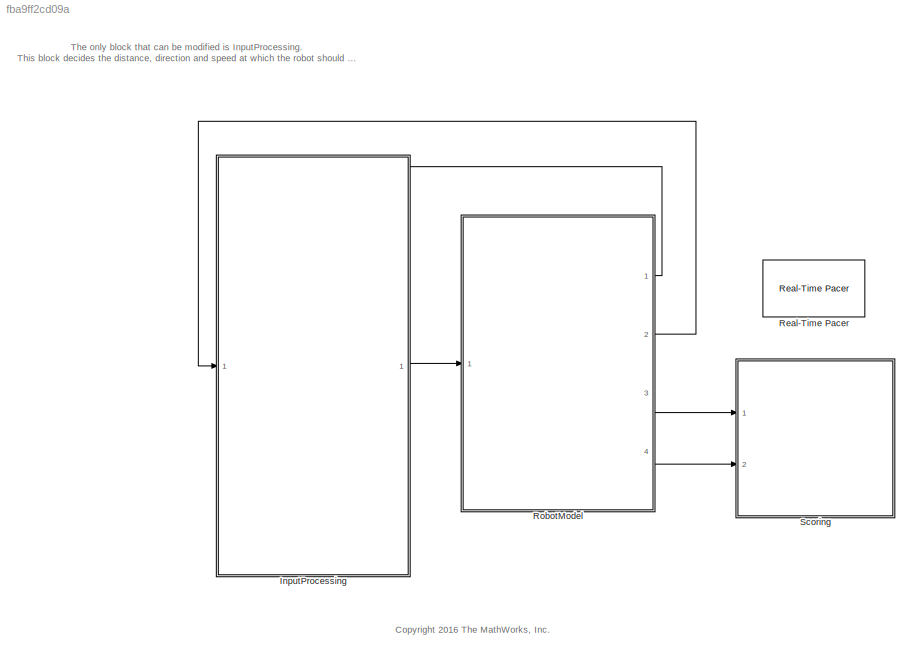
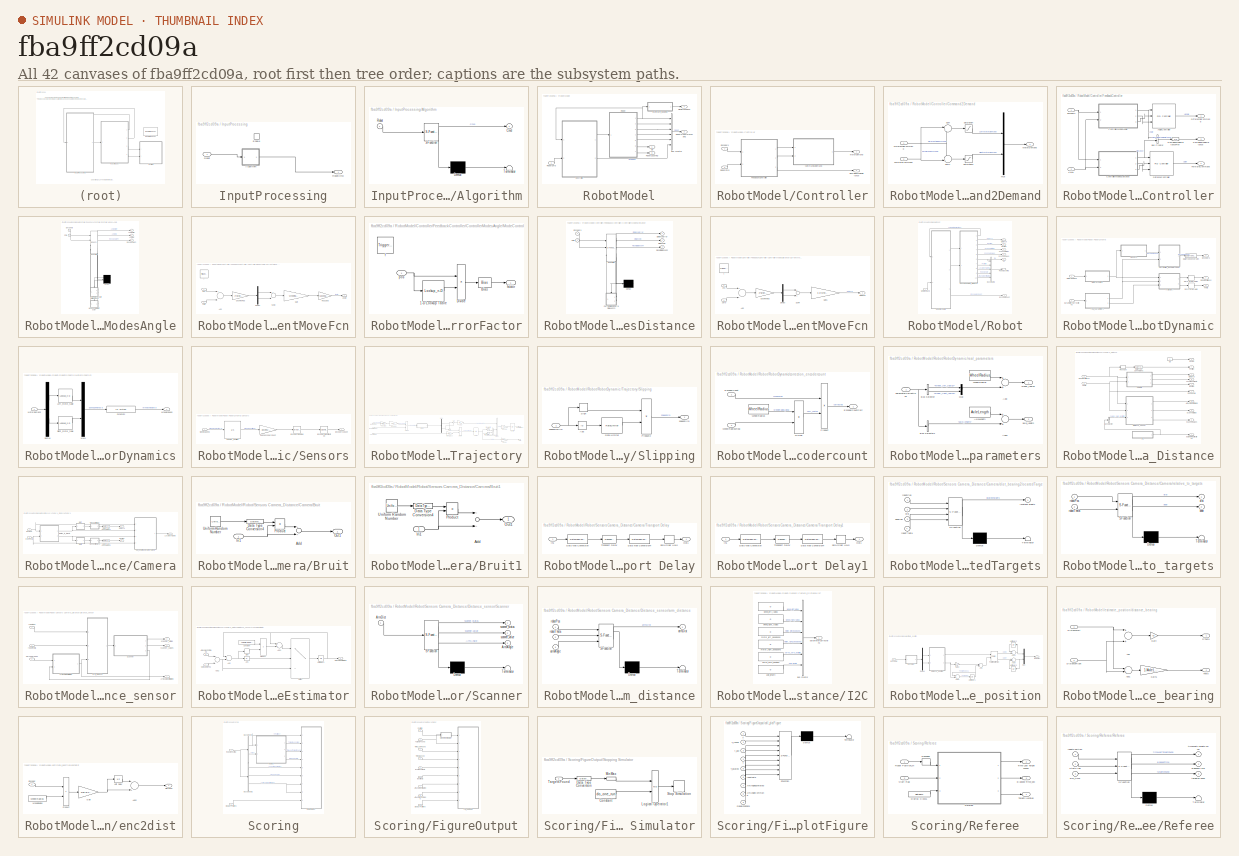
[diagram: thumbnail index - all 42 canvases of the model, root first then tree order]
MODEL slx_fba9ff2cd09a
KIND model
CONFIG AbsTol = auto
CONFIG FixedStep = auto
CONFIG MaxStep = auto
CONFIG MinStep = auto
CONFIG PostLoadFcn = loadRobotParameters\n
CONFIG PreLoadFcn = addLibrariesInPath('sim')
CONFIG RelTol = 1e-3
CONFIG SampleTimeConstraint = Unconstrained
CONFIG Solver = ode3
CONFIG SolverMode = SingleTasking
CONFIG SolverName = ode3
CONFIG StartFcn = simApp = SimDisplay.getInstance;\nsimApp.reset;\nsimApp.TrackView.setup(double(SitesPositions), ObstaclesPositions,ObstaclesVertices,ObstaclesEdges);
CONFIG StartTime = 0.0
CONFIG StopTime = inf
BLOCK [SubSystem] InputProcessing
  Ports = [1, 1, 1]
  RequestExecContextInheritance = off
  Variant = off
BLOCK [SubSystem] InputProcessing/Algorithm
  ErrorFcn = Stateflow.Translate.translate
  PermitHierarchicalResolution = ExplicitOnly
  Ports = [1, 1]
  RequestExecContextInheritance = off
  SFBlockType = Chart
  TreatAsAtomicUnit = on
  Variant = off
BLOCK [Demux] InputProcessing/Algorithm/ Demux 
  Outputs = 1
  Ports = [1, 1]
BLOCK [S-Function] InputProcessing/Algorithm/ SFunction 
  EnableBusSupport = on
  FunctionName = sf_sfun
  PortCounts = [1 2]
  Ports = [1, 2]
  SFunctionDeploymentMode = off
  Tag = Stateflow S-Function SimpleDistance 2
BLOCK [Terminator] InputProcessing/Algorithm/ Terminator 
BLOCK [Outport] InputProcessing/Algorithm/Cmd
  IconDisplay = Port number
BLOCK [Inport] InputProcessing/Algorithm/Robot
  IconDisplay = Port number
BLOCK [EnablePort] InputProcessing/Enable
  Ports = []
BLOCK [Inport] InputProcessing/Robot
  IconDisplay = Port number
  OutDataTypeStr = Bus: bus_Robot
BLOCK [Outport] InputProcessing/RobotCmd
  IconDisplay = Port number
  OutDataTypeStr = Bus: bus_Command
BLOCK [Reference] Real-Time Pacer  REF=realtime_pacer_lib/Real-Time Pacer
  Ports = []
  SourceBlock = realtime_pacer_lib/Real-Time Pacer
  SourceType = RealTime_Pacer
BLOCK [SubSystem] RobotModel
  Ports = [1, 4]
  RequestExecContextInheritance = off
  Variant = off
BLOCK [BusCreator] RobotModel/Bus Creator
  DisplayOption = bar
  InheritFromInputs = on
  Inputs = 6
  NonVirtualBus = on
  OutDataTypeStr = Bus: bus_Robot
  Ports = [6, 1]
BLOCK [SubSystem] RobotModel/Controller
  Ports = [2, 2]
  RequestExecContextInheritance = off
  Variant = off
BLOCK [SubSystem] RobotModel/Controller/Command2Demand
  Ports = [2, 1]
  RequestExecContextInheritance = off
  Variant = off
BLOCK [Inport] RobotModel/Controller/Command2Demand/DifferentialCommand
  IconDisplay = Port number
BLOCK [Inport] RobotModel/Controller/Command2Demand/ForwardCommand
  IconDisplay = Port number
  Port = 2
BLOCK [Outport] RobotModel/Controller/Command2Demand/MotorDemand
  IconDisplay = Port number
BLOCK [Mux] RobotModel/Controller/Command2Demand/Mux
  DisplayOption = bar
  Inputs = 2
  Ports = [2, 1]
BLOCK [Saturate] RobotModel/Controller/Command2Demand/Saturation
  InputPortMap = u0
  LowerLimit = -100
  Ports = [1, 1]
  UpperLimit = 100
BLOCK [Saturate] RobotModel/Controller/Command2Demand/Saturation1
  InputPortMap = u0
  LowerLimit = -100
  Ports = [1, 1]
  UpperLimit = 100
BLOCK [Sum] RobotModel/Controller/Command2Demand/Sum
  IconShape = round
  InputSameDT = off
  Inputs = |++
  OutDataTypeStr = Inherit: Inherit via internal rule
  Ports = [2, 1]
  SaturateOnIntegerOverflow = off
BLOCK [Sum] RobotModel/Controller/Command2Demand/Sum1
  IconShape = round
  InputSameDT = off
  Inputs = -+|
  OutDataTypeStr = Inherit: Inherit via internal rule
  Ports = [2, 1]
  SaturateOnIntegerOverflow = off
BLOCK [Inport] RobotModel/Controller/Encoders
  IconDisplay = Port number
BLOCK [SubSystem] RobotModel/Controller/FeedbackController
  Ports = [2, 3]
  RequestExecContextInheritance = off
  Variant = off
  VariantControl = variantBasic
BLOCK [Reference] RobotModel/Controller/FeedbackController/AngleController  REF=simulink/Continuous/PID Controller
  Ports = [3, 1]
  SourceBlock = simulink/Continuous/PID Controller
  SourceType = PID 1dof
BLOCK [BusCreator] RobotModel/Controller/FeedbackController/Bus Creator
  DisplayOption = bar
  InheritFromInputs = on
  Inputs = 2
  NonVirtualBus = on
  OutDataTypeStr = Bus: bus_RemainingPosition
  Ports = [2, 1]
BLOCK [Inport] RobotModel/Controller/FeedbackController/Cmd
  IconDisplay = Port number
  OutDataTypeStr = Bus: bus_Command
  Port = 2
BLOCK [SubSystem] RobotModel/Controller/FeedbackController/ControllerModesAngle
  ErrorFcn = Stateflow.Translate.translate
  PermitHierarchicalResolution = ExplicitOnly
  Ports = [2, 3]
  RequestExecContextInheritance = off
  SFBlockType = Chart
  TreatAsAtomicUnit = on
  Variant = off
BLOCK [Demux] RobotModel/Controller/FeedbackController/ControllerModesAngle/ Demux 
  Outputs = 2
  Ports = [1, 2]
BLOCK [S-Function] RobotModel/Controller/FeedbackController/ControllerModesAngle/ SFunction 
  EnableBusSupport = on
  FunctionName = sf_sfun
  Parameters = Ts
  PortCounts = [4 7]
  Ports = [4, 7]
  SFunctionDeploymentMode = off
  Tag = Stateflow S-Function SimpleDistance 1
BLOCK [Outport] RobotModel/Controller/FeedbackController/ControllerModesAngle/AngleError
  IconDisplay = Port number
BLOCK [Outport] RobotModel/Controller/FeedbackController/ControllerModesAngle/AngleIC
  IconDisplay = Port number
  Port = 2
BLOCK [Inport] RobotModel/Controller/FeedbackController/ControllerModesAngle/Cmd
  IconDisplay = Port number
  Port = 2
BLOCK [SubSystem] RobotModel/Controller/FeedbackController/ControllerModesAngle/CurrentMove.CurrentMoveFcn
  Ports = [2, 1, 0, 1]
  PreDeleteFcn = Stateflow.SLINSF.SimulinkMan.removePreDeleteFcn
  RequestExecContextInheritance = off
  UndoDeleteFcn = Stateflow.SLINSF.SimulinkMan.restorePreDeleteFcn
  Variant = off
BLOCK [Sum] RobotModel/Controller/FeedbackController/ControllerModesAngle/CurrentMove.CurrentMoveFcn/Add
  InputSameDT = off
  Inputs = +-
  OutDataTypeStr = single
  Ports = [2, 1]
  SaturateOnIntegerOverflow = off
BLOCK [Gain] RobotModel/Controller/FeedbackController/ControllerModesAngle/CurrentMove.CurrentMoveFcn/CountToRad
  Gain = 2*pi/EncRes
  OutDataTypeStr = Inherit: Inherit via internal rule
  ParamDataTypeStr = Inherit: Inherit via internal rule
  SaturateOnIntegerOverflow = off
BLOCK [Demux] RobotModel/Controller/FeedbackController/ControllerModesAngle/CurrentMove.CurrentMoveFcn/Demux
  DisplayOption = bar
  Outputs = 2
  Ports = [1, 2]
BLOCK [Gain] RobotModel/Controller/FeedbackController/ControllerModesAngle/CurrentMove.CurrentMoveFcn/Gain
  Gain = WheelRadius/AxleLength
  OutDataTypeStr = Inherit: Inherit via internal rule
  ParamDataTypeStr = Inherit: Inherit via internal rule
  SaturateOnIntegerOverflow = off
BLOCK [Gain] RobotModel/Controller/FeedbackController/ControllerModesAngle/CurrentMove.CurrentMoveFcn/Rad2Deg
  Gain = rad2deg(1)
  OutDataTypeStr = Inherit: Inherit via internal rule
  ParamDataTypeStr = Inherit: Inherit via internal rule
  SaturateOnIntegerOverflow = off
BLOCK [Sum] RobotModel/Controller/FeedbackController/ControllerModesAngle/CurrentMove.CurrentMoveFcn/Sum2
  InputSameDT = off
  Inputs = +-
  OutDataTypeStr = Inherit: Inherit via internal rule
  Ports = [2, 1]
  SaturateOnIntegerOverflow = off
BLOCK [Outport] RobotModel/Controller/FeedbackController/ControllerModesAngle/CurrentMove.CurrentMoveFcn/angle
  IconDisplay = Port number
BLOCK [Inport] RobotModel/Controller/FeedbackController/ControllerModesAngle/CurrentMove.CurrentMoveFcn/enc
  IconDisplay = Port number
  OutDataTypeStr = int32
  PortDimensions = 2
  SignalType = real
  VarSizeSig = No
BLOCK [TriggerPort] RobotModel/Controller/FeedbackController/ControllerModesAngle/CurrentMove.CurrentMoveFcn/f
  CopyFcn = Stateflow.SLINSF.SimulinkMan.removeBlockPreDeleteFcn
  Ports = []
  PreDeleteFcn = Stateflow.SLINSF.SimulinkMan.unsafePredeleteFcn
  StatesWhenEnabling = held
  TriggerType = function-call
BLOCK [Inport] RobotModel/Controller/FeedbackController/ControllerModesAngle/CurrentMove.CurrentMoveFcn/zero
  IconDisplay = Port number
  OutDataTypeStr = int32
  Port = 2
  PortDimensions = 2
  SignalType = real
  VarSizeSig = No
BLOCK [Inport] RobotModel/Controller/FeedbackController/ControllerModesAngle/Encoders
  IconDisplay = Port number
BLOCK [SubSystem] RobotModel/Controller/FeedbackController/ControllerModesAngle/ModeControl.errorFactor
  Ports = [1, 1, 0, 1]
  PreDeleteFcn = Stateflow.SLINSF.SimulinkMan.removePreDeleteFcn
  RequestExecContextInheritance = off
  UndoDeleteFcn = Stateflow.SLINSF.SimulinkMan.restorePreDeleteFcn
  Variant = off
BLOCK [Lookup_n-D] RobotModel/Controller/FeedbackController/ControllerModesAngle/ModeControl.errorFactor/1-D Lookup Table
  BreakpointsForDimension1 = [10;20;40;60;80;100]
  ExtrapMethod = Clip
  InternalRulePriority = Speed
  NumberOfTableDimensions = 1
  Ports = [1, 1]
  RndMeth = Simplest
  Table = [60;10;25;20;10;10]
BLOCK [Bias] RobotModel/Controller/FeedbackController/ControllerModesAngle/ModeControl.errorFactor/Bias
  Bias = 1
  SaturateOnIntegerOverflow = off
BLOCK [Product] RobotModel/Controller/FeedbackController/ControllerModesAngle/ModeControl.errorFactor/Divide
  InputSameDT = off
  Inputs = */
  OutDataTypeStr = Inherit: Inherit via internal rule
  Ports = [2, 1]
  RndMeth = Floor
  SaturateOnIntegerOverflow = off
BLOCK [TriggerPort] RobotModel/Controller/FeedbackController/ControllerModesAngle/ModeControl.errorFactor/f
  CopyFcn = Stateflow.SLINSF.SimulinkMan.removeBlockPreDeleteFcn
  Ports = []
  PreDeleteFcn = Stateflow.SLINSF.SimulinkMan.unsafePredeleteFcn
  StatesWhenEnabling = held
  TriggerType = function-call
BLOCK [Outport] RobotModel/Controller/FeedbackController/ControllerModesAngle/ModeControl.errorFactor/factor
  IconDisplay = Port number
  OutDataTypeStr = single
  PortDimensions = 1
BLOCK [Inport] RobotModel/Controller/FeedbackController/ControllerModesAngle/ModeControl.errorFactor/pos
  IconDisplay = Port number
  OutDataTypeStr = single
  PortDimensions = 1
  SignalType = real
  VarSizeSig = No
BLOCK [Outport] RobotModel/Controller/FeedbackController/ControllerModesAngle/ResetAnglePI
  IconDisplay = Port number
  Port = 3
BLOCK [SubSystem] RobotModel/Controller/FeedbackController/ControllerModesDistance
  ErrorFcn = Stateflow.Translate.translate
  PermitHierarchicalResolution = ExplicitOnly
  Ports = [2, 3]
  RequestExecContextInheritance = off
  SFBlockType = Chart
  TreatAsAtomicUnit = on
  Variant = off
BLOCK [Demux] RobotModel/Controller/FeedbackController/ControllerModesDistance/ Demux 
  Outputs = 1
  Ports = [1, 1]
BLOCK [S-Function] RobotModel/Controller/FeedbackController/ControllerModesDistance/ SFunction 
  EnableBusSupport = on
  FunctionName = sf_sfun
  Parameters = Ts
  PortCounts = [3 6]
  Ports = [3, 6]
  SFunctionDeploymentMode = off
  Tag = Stateflow S-Function SimpleDistance 4
BLOCK [Inport] RobotModel/Controller/FeedbackController/ControllerModesDistance/Cmd
  IconDisplay = Port number
  Port = 2
BLOCK [SubSystem] RobotModel/Controller/FeedbackController/ControllerModesDistance/CurrentMove.CurrentMoveFcn
  Ports = [2, 1, 0, 1]
  PreDeleteFcn = Stateflow.SLINSF.SimulinkMan.removePreDeleteFcn
  RequestExecContextInheritance = off
  UndoDeleteFcn = Stateflow.SLINSF.SimulinkMan.restorePreDeleteFcn
  Variant = off
BLOCK [Sum] RobotModel/Controller/FeedbackController/ControllerModesDistance/CurrentMove.CurrentMoveFcn/Add
  InputSameDT = off
  Inputs = +-
  OutDataTypeStr = single
  Ports = [2, 1]
  SaturateOnIntegerOverflow = off
BLOCK [Gain] RobotModel/Controller/FeedbackController/ControllerModesDistance/CurrentMove.CurrentMoveFcn/CountToRad
  Gain = 2*pi/EncRes
  OutDataTypeStr = Inherit: Inherit via internal rule
  ParamDataTypeStr = Inherit: Inherit via internal rule
  SaturateOnIntegerOverflow = off
BLOCK [Demux] RobotModel/Controller/FeedbackController/ControllerModesDistance/CurrentMove.CurrentMoveFcn/Demux
  DisplayOption = bar
  Outputs = 2
  Ports = [1, 2]
BLOCK [Gain] RobotModel/Controller/FeedbackController/ControllerModesDistance/CurrentMove.CurrentMoveFcn/Gain1
  Gain = 0.5*WheelRadius
  OutDataTypeStr = Inherit: Inherit via internal rule
  ParamDataTypeStr = Inherit: Inherit via internal rule
  SaturateOnIntegerOverflow = off
BLOCK [Sum] RobotModel/Controller/FeedbackController/ControllerModesDistance/CurrentMove.CurrentMoveFcn/Sum4
  InputSameDT = off
  OutDataTypeStr = Inherit: Inherit via internal rule
  Ports = [2, 1]
  SaturateOnIntegerOverflow = off
BLOCK [Outport] RobotModel/Controller/FeedbackController/ControllerModesDistance/CurrentMove.CurrentMoveFcn/distance
  IconDisplay = Port number
BLOCK [Inport] RobotModel/Controller/FeedbackController/ControllerModesDistance/CurrentMove.CurrentMoveFcn/enc
  IconDisplay = Port number
  OutDataTypeStr = int32
  PortDimensions = 2
  SignalType = real
  VarSizeSig = No
BLOCK [TriggerPort] RobotModel/Controller/FeedbackController/ControllerModesDistance/CurrentMove.CurrentMoveFcn/f
  CopyFcn = Stateflow.SLINSF.SimulinkMan.removeBlockPreDeleteFcn
  Ports = []
  PreDeleteFcn = Stateflow.SLINSF.SimulinkMan.unsafePredeleteFcn
  StatesWhenEnabling = held
  TriggerType = function-call
BLOCK [Inport] RobotModel/Controller/FeedbackController/ControllerModesDistance/CurrentMove.CurrentMoveFcn/zero
  IconDisplay = Port number
  OutDataTypeStr = int32
  Port = 2
  PortDimensions = 2
  SignalType = real
  VarSizeSig = No
BLOCK [Outport] RobotModel/Controller/FeedbackController/ControllerModesDistance/DistanceError
  IconDisplay = Port number
BLOCK [Outport] RobotModel/Controller/FeedbackController/ControllerModesDistance/DistanceIC
  IconDisplay = Port number
  Port = 2
BLOCK [Inport] RobotModel/Controller/FeedbackController/ControllerModesDistance/Encoders
  IconDisplay = Port number
BLOCK [Outport] RobotModel/Controller/FeedbackController/ControllerModesDistance/ResetDistancePI
  IconDisplay = Port number
  Port = 3
BLOCK [Outport] RobotModel/Controller/FeedbackController/DifferentialCommand
  IconDisplay = Port number
BLOCK [Reference] RobotModel/Controller/FeedbackController/DistanceController  REF=simulink/Continuous/PID Controller
  Ports = [3, 1]
  SourceBlock = simulink/Continuous/PID Controller
  SourceType = PID 1dof
BLOCK [Inport] RobotModel/Controller/FeedbackController/Encoders
  IconDisplay = Port number
BLOCK [Outport] RobotModel/Controller/FeedbackController/ForwardCommand
  IconDisplay = Port number
  Port = 2
BLOCK [Outport] RobotModel/Controller/FeedbackController/RemainingAngleDistance
  IconDisplay = Port number
  OutDataTypeStr = Bus: bus_RemainingPosition
  Port = 3
BLOCK [UnitDelay] RobotModel/Controller/FeedbackController/RemainingAngleDistancePrev
  InputProcessing = Elements as channels (sample based)
  SampleTime = -1
BLOCK [Outport] RobotModel/Controller/MotorDemand
  IconDisplay = Port number
  InitialOutput = 0
  OutputWhenDisabled = reset
  SampleTime = Ts
BLOCK [Outport] RobotModel/Controller/RemainingAngleDistance
  IconDisplay = Port number
  InitialOutput = 0
  OutputWhenDisabled = reset
  Port = 2
BLOCK [Inport] RobotModel/Controller/RobotCmd
  IconDisplay = Port number
  OutDataTypeStr = Bus: bus_Command
  Port = 2
BLOCK [Outport] RobotModel/DisplayPositions
  IconDisplay = Port number
  Port = 4
BLOCK [Outport] RobotModel/Go
  IconDisplay = Port number
BLOCK [SubSystem] RobotModel/Robot
  Ports = [1, 7]
  RequestExecContextInheritance = off
  Variant = off
BLOCK [Outport] RobotModel/Robot/Bearing
  IconDisplay = Port number
  Port = 3
BLOCK [BusCreator] RobotModel/Robot/Bus Creator1
  DisplayOption = bar
  InheritFromInputs = on
  Inputs = 5
  Ports = [5, 1]
BLOCK [Outport] RobotModel/Robot/Distance
  IconDisplay = Port number
  Port = 2
BLOCK [Outport] RobotModel/Robot/EncoderCount
  IconDisplay = Port number
BLOCK [Outport] RobotModel/Robot/Go
  IconDisplay = Port number
  Port = 6
BLOCK [Inport] RobotModel/Robot/MotorDemand
  IconDisplay = Port number
BLOCK [Outport] RobotModel/Robot/Robot2Scoring
  IconDisplay = Port number
  Port = 7
BLOCK [SubSystem] RobotModel/Robot/RobotDynamic
  Ports = [2, 3]
  RequestExecContextInheritance = off
  Variant = off
BLOCK [DataTypeConversion] RobotModel/Robot/RobotDynamic/Data Type Conversion
  RndMeth = Floor
  SaturateOnIntegerOverflow = off
BLOCK [Outport] RobotModel/Robot/RobotDynamic/Encoders
  IconDisplay = Port number
  Port = 3
BLOCK [Inport] RobotModel/Robot/RobotDynamic/MotorDemand
  IconDisplay = Port number
  Port = 2
BLOCK [SubSystem] RobotModel/Robot/RobotDynamic/MotorDynamics
  Ports = [1, 1]
  RequestExecContextInheritance = off
  Variant = off
BLOCK [Demux] RobotModel/Robot/RobotDynamic/MotorDynamics/Demux
  DisplayOption = bar
  Outputs = 2
  Ports = [1, 2]
BLOCK [Reference] RobotModel/Robot/RobotDynamic/MotorDynamics/Dynamics  REF=cstblocks/LTI System
  Ports = [1, 1]
  SourceBlock = cstblocks/LTI System
  SourceType = LTI Block
BLOCK [Lookup_n-D] RobotModel/Robot/RobotDynamic/MotorDynamics/Left_motor_table
  BreakpointsForDimension1 = motorX
  ExtrapMethod = Clip
  InternalRulePriority = Speed
  NumberOfTableDimensions = 1
  OutDataTypeStr = Inherit: Inherit via back propagation
  Ports = [1, 1]
  RndMeth = Simplest
  Table = motorL
BLOCK [Inport] RobotModel/Robot/RobotDynamic/MotorDynamics/MotorDemand
  IconDisplay = Port number
BLOCK [Mux] RobotModel/Robot/RobotDynamic/MotorDynamics/Mux1
  DisplayOption = bar
  Inputs = 2
  Ports = [2, 1]
BLOCK [Lookup_n-D] RobotModel/Robot/RobotDynamic/MotorDynamics/Right_motor_table
  BreakpointsForDimension1 = motorX
  ExtrapMethod = Clip
  InternalRulePriority = Speed
  NumberOfTableDimensions = 1
  OutDataTypeStr = Inherit: Inherit via back propagation
  Ports = [1, 1]
  RndMeth = Simplest
  Table = motorR
BLOCK [Outport] RobotModel/Robot/RobotDynamic/MotorDynamics/WheelsSpeed
  IconDisplay = Port number
  PortDimensions = 2
BLOCK [Outport] RobotModel/Robot/RobotDynamic/RobotPositionXY
  IconDisplay = Port number
BLOCK [SubSystem] RobotModel/Robot/RobotDynamic/Sensors
  Ports = [1, 1]
  RequestExecContextInheritance = off
  Variant = off
BLOCK [Quantizer] RobotModel/Robot/RobotDynamic/Sensors/Encoder Quantization
  QuantizationInterval = (360/EncRes)
BLOCK [ZeroOrderHold] RobotModel/Robot/RobotDynamic/Sensors/Encoder Reading
  SampleTime = Ts
BLOCK [Outport] RobotModel/Robot/RobotDynamic/Sensors/EncodersCount
  IconDisplay = Port number
BLOCK [Inport] RobotModel/Robot/RobotDynamic/Sensors/WheelsSpeed
  IconDisplay = Port number
BLOCK [Integrator] RobotModel/Robot/RobotDynamic/Sensors/angular_position
  InitialCondition = [EncL_init;EncR_init]
  Ports = [1, 1]
BLOCK [Gain] RobotModel/Robot/RobotDynamic/Sensors/deg2encoderCount
  Gain = EncRes/360
  OutDataTypeStr = Inherit: Inherit via back propagation
  ParamDataTypeStr = Inherit: Inherit via internal rule
  SaturateOnIntegerOverflow = off
BLOCK [Outport] RobotModel/Robot/RobotDynamic/Theta
  IconDisplay = Port number
  Port = 2
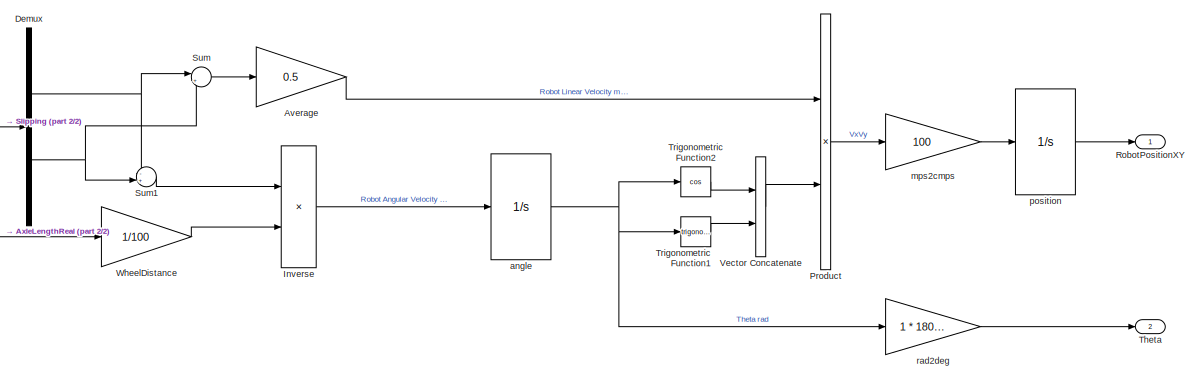
[diagram: RobotModel/Robot/RobotDynamic/Trajectory - part 1/2, right side, full height]
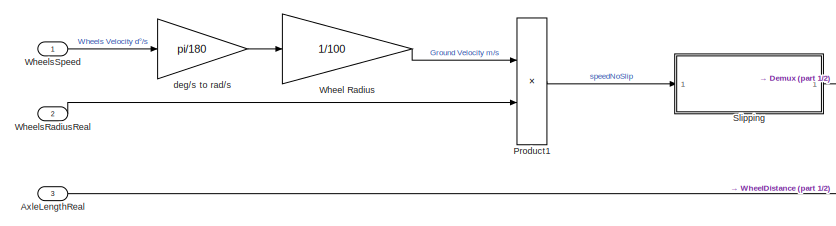
[diagram: RobotModel/Robot/RobotDynamic/Trajectory - part 2/2, middle left region]
BLOCK [SubSystem] RobotModel/Robot/RobotDynamic/Trajectory
  Ports = [3, 2]
  RequestExecContextInheritance = off
  Variant = off
BLOCK [Gain] RobotModel/Robot/RobotDynamic/Trajectory/Average
  Gain = 0.5
  OutDataTypeStr = Inherit: Inherit via internal rule
  ParamDataTypeStr = Inherit: Inherit via internal rule
  SaturateOnIntegerOverflow = off
BLOCK [Inport] RobotModel/Robot/RobotDynamic/Trajectory/AxleLengthReal
  IconDisplay = Port number
  Port = 3
  PortDimensions = 1
BLOCK [Demux] RobotModel/Robot/RobotDynamic/Trajectory/Demux
  DisplayOption = bar
  Outputs = 2
  Ports = [1, 2]
BLOCK [Product] RobotModel/Robot/RobotDynamic/Trajectory/Inverse
  InputSameDT = off
  Inputs = */
  OutDataTypeStr = Inherit: Inherit via internal rule
  Ports = [2, 1]
  RndMeth = Floor
  SaturateOnIntegerOverflow = off
BLOCK [Product] RobotModel/Robot/RobotDynamic/Trajectory/Product
  InputSameDT = off
  OutDataTypeStr = Inherit: Inherit via internal rule
  Ports = [2, 1]
  RndMeth = Floor
  SaturateOnIntegerOverflow = off
BLOCK [Product] RobotModel/Robot/RobotDynamic/Trajectory/Product1
  InputSameDT = off
  OutDataTypeStr = Inherit: Inherit via internal rule
  Ports = [2, 1]
  RndMeth = Floor
  SaturateOnIntegerOverflow = off
BLOCK [Outport] RobotModel/Robot/RobotDynamic/Trajectory/RobotPositionXY
  IconDisplay = Port number
BLOCK [SubSystem] RobotModel/Robot/RobotDynamic/Trajectory/Slipping
  Commented = through
  Ports = [1, 1]
  RequestExecContextInheritance = off
  Variant = off
BLOCK [Abs] RobotModel/Robot/RobotDynamic/Trajectory/Slipping/Abs
  SaturateOnIntegerOverflow = off
BLOCK [Product] RobotModel/Robot/RobotDynamic/Trajectory/Slipping/Product2
  InputSameDT = off
  OutDataTypeStr = Inherit: Inherit via internal rule
  Ports = [2, 1]
  RndMeth = Floor
  SaturateOnIntegerOverflow = off
BLOCK [RateLimiter] RobotModel/Robot/RobotDynamic/Trajectory/Slipping/Rate Limiter
  FallingSlewLimit = -1000
  RisingSlewLimit = [1 1]*3
  SampleTimeMode = inherited
BLOCK [Signum] RobotModel/Robot/RobotDynamic/Trajectory/Slipping/Sign
BLOCK [Inport] RobotModel/Robot/RobotDynamic/Trajectory/Slipping/speedNoSlip
  IconDisplay = Port number
BLOCK [Outport] RobotModel/Robot/RobotDynamic/Trajectory/Slipping/speedSlip
  IconDisplay = Port number
BLOCK [Sum] RobotModel/Robot/RobotDynamic/Trajectory/Sum
  IconShape = round
  InputSameDT = off
  Inputs = |++
  OutDataTypeStr = Inherit: Inherit via internal rule
  Ports = [2, 1]
  SaturateOnIntegerOverflow = off
BLOCK [Sum] RobotModel/Robot/RobotDynamic/Trajectory/Sum1
  IconShape = round
  InputSameDT = off
  Inputs = -+|
  OutDataTypeStr = Inherit: Inherit via internal rule
  Ports = [2, 1]
  SaturateOnIntegerOverflow = off
BLOCK [Outport] RobotModel/Robot/RobotDynamic/Trajectory/Theta
  IconDisplay = Port number
  Port = 2
BLOCK [Trigonometry] RobotModel/Robot/RobotDynamic/Trajectory/Trigonometric Function1
  Ports = [1, 1]
BLOCK [Trigonometry] RobotModel/Robot/RobotDynamic/Trajectory/Trigonometric Function2
  Operator = cos
  Ports = [1, 1]
BLOCK [Concatenate] RobotModel/Robot/RobotDynamic/Trajectory/Vector Concatenate
  Ports = [2, 1]
BLOCK [Gain] RobotModel/Robot/RobotDynamic/Trajectory/Wheel Radius
  Gain = 1/100
  OutDataTypeStr = Inherit: Inherit via internal rule
  ParamDataTypeStr = Inherit: Inherit via internal rule
  SaturateOnIntegerOverflow = off
BLOCK [Gain] RobotModel/Robot/RobotDynamic/Trajectory/WheelDistance
  Gain = 1/100
  OutDataTypeStr = Inherit: Inherit via internal rule
  ParamDataTypeStr = Inherit: Inherit via internal rule
  SaturateOnIntegerOverflow = off
BLOCK [Inport] RobotModel/Robot/RobotDynamic/Trajectory/WheelsRadiusReal
  IconDisplay = Port number
  Port = 2
  PortDimensions = 2
BLOCK [Inport] RobotModel/Robot/RobotDynamic/Trajectory/WheelsSpeed
  IconDisplay = Port number
  PortDimensions = 2
BLOCK [Integrator] RobotModel/Robot/RobotDynamic/Trajectory/angle
  InitialCondition = theta0 * pi/180
  Ports = [1, 1]
BLOCK [Gain] RobotModel/Robot/RobotDynamic/Trajectory/deg//s to rad//s
  Gain = pi/180
  OutDataTypeStr = Inherit: Inherit via internal rule
  ParamDataTypeStr = Inherit: Inherit via internal rule
  SaturateOnIntegerOverflow = off
BLOCK [Gain] RobotModel/Robot/RobotDynamic/Trajectory/mps2cmps
  Gain = 100
  OutDataTypeStr = Inherit: Inherit via internal rule
  ParamDataTypeStr = Inherit: Inherit via internal rule
  SaturateOnIntegerOverflow = off
BLOCK [Integrator] RobotModel/Robot/RobotDynamic/Trajectory/position
  InitialCondition = double(startPos)
  Ports = [1, 1]
BLOCK [Gain] RobotModel/Robot/RobotDynamic/Trajectory/rad2deg
  Gain = 1 * 180/pi
  OutDataTypeStr = Inherit: Inherit via internal rule
  ParamDataTypeStr = Inherit: Inherit via internal rule
  SaturateOnIntegerOverflow = off
BLOCK [ZeroOrderHold] RobotModel/Robot/RobotDynamic/Zero-Order Hold
  SampleTime = Ts
BLOCK [ZeroOrderHold] RobotModel/Robot/RobotDynamic/Zero-Order Hold1
  SampleTime = Ts
BLOCK [SubSystem] RobotModel/Robot/RobotDynamic/correction_encodercount
  Ports = [2, 1]
  RequestExecContextInheritance = off
  Variant = off
BLOCK [Product] RobotModel/Robot/RobotDynamic/correction_encodercount/Divide
  InputSameDT = off
  Inputs = */
  OutDataTypeStr = Inherit: Inherit via internal rule
  Ports = [2, 1]
  RndMeth = Floor
  SaturateOnIntegerOverflow = off
BLOCK [Inport] RobotModel/Robot/RobotDynamic/correction_encodercount/EncoderCount
  IconDisplay = Port number
BLOCK [Outport] RobotModel/Robot/RobotDynamic/correction_encodercount/EncoderCountCorr
  IconDisplay = Port number
BLOCK [Product] RobotModel/Robot/RobotDynamic/correction_encodercount/Product
  InputSameDT = off
  OutDataTypeStr = Inherit: Inherit via internal rule
  Ports = [2, 1]
  RndMeth = Floor
  SaturateOnIntegerOverflow = off
BLOCK [Constant] RobotModel/Robot/RobotDynamic/correction_encodercount/WheelRadius
  Value = WheelRadius
BLOCK [Inport] RobotModel/Robot/RobotDynamic/correction_encodercount/WheelRadiusReal
  IconDisplay = Port number
  Port = 2
BLOCK [Inport] RobotModel/Robot/RobotDynamic/parameterCorrections
  IconDisplay = Port number
BLOCK [SubSystem] RobotModel/Robot/RobotDynamic/real_parameters
  Ports = [1, 2]
  RequestExecContextInheritance = off
  Variant = off
BLOCK [Sum] RobotModel/Robot/RobotDynamic/real_parameters/Add
  InputSameDT = off
  OutDataTypeStr = Inherit: Inherit via internal rule
  Ports = [2, 1]
  SaturateOnIntegerOverflow = off
BLOCK [Sum] RobotModel/Robot/RobotDynamic/real_parameters/Add1
  InputSameDT = off
  OutDataTypeStr = Inherit: Inherit via internal rule
  Ports = [2, 1]
  SaturateOnIntegerOverflow = off
BLOCK [Constant] RobotModel/Robot/RobotDynamic/real_parameters/AxleLength
  Value = AxleLength
BLOCK [BusSelector] RobotModel/Robot/RobotDynamic/real_parameters/Bus Selector
  OutputSignals = wheel_left_radius,wheel_right_radius
  Ports = [1, 2]
BLOCK [BusSelector] RobotModel/Robot/RobotDynamic/real_parameters/Bus Selector1
  OutputSignals = axle_length
  Ports = [1, 1]
BLOCK [Mux] RobotModel/Robot/RobotDynamic/real_parameters/Mux
  DisplayOption = bar
  Inputs = 2
  Ports = [2, 1]
BLOCK [Constant] RobotModel/Robot/RobotDynamic/real_parameters/WheelRadius
  Value = WheelRadius
BLOCK [Outport] RobotModel/Robot/RobotDynamic/real_parameters/axle_length
  IconDisplay = Port number
  Port = 2
BLOCK [Inport] RobotModel/Robot/RobotDynamic/real_parameters/parameterCorrections
  IconDisplay = Port number
BLOCK [Outport] RobotModel/Robot/RobotDynamic/real_parameters/wheel_radius
  IconDisplay = Port number
BLOCK [Outport] RobotModel/Robot/ScannerStatus
  IconDisplay = Port number
  Port = 4
BLOCK [Outport] RobotModel/Robot/ScannerValues
  IconDisplay = Port number
  Port = 5
BLOCK [SubSystem] RobotModel/Robot/Sensors Camera_Distance
  Ports = [2, 10]
  RequestExecContextInheritance = off
  Variant = off
BLOCK [Outport] RobotModel/Robot/Sensors Camera_Distance/ArmAngleEstimated
  IconDisplay = Port number
  Port = 10
BLOCK [Outport] RobotModel/Robot/Sensors Camera_Distance/Bearing
  IconDisplay = Port number
  OutDataTypeStr = int8
  Port = 3
BLOCK [BusSelector] RobotModel/Robot/Sensors Camera_Distance/Bus Selector
  OutputSignals = servo_zero_position
  Ports = [1, 1]
BLOCK [SubSystem] RobotModel/Robot/Sensors Camera_Distance/Camera
  Ports = [2, 3]
  RequestExecContextInheritance = off
  Variant = off
BLOCK [Outport] RobotModel/Robot/Sensors Camera_Distance/Camera/Bearing
  IconDisplay = Port number
  OutDataTypeStr = int8
  Port = 3
BLOCK [SubSystem] RobotModel/Robot/Sensors Camera_Distance/Camera/Bruit
  Ports = [1, 1]
  RequestExecContextInheritance = off
  Variant = off
BLOCK [Sum] RobotModel/Robot/Sensors Camera_Distance/Camera/Bruit/Add
  InputSameDT = off
  OutDataTypeStr = Inherit: Inherit via internal rule
  Ports = [2, 1]
  SaturateOnIntegerOverflow = off
BLOCK [DataTypeConversion] RobotModel/Robot/Sensors Camera_Distance/Camera/Bruit/Data Type Conversion4
  RndMeth = Floor
  SaturateOnIntegerOverflow = off
BLOCK [Inport] RobotModel/Robot/Sensors Camera_Distance/Camera/Bruit/In1
  IconDisplay = Port number
BLOCK [Outport] RobotModel/Robot/Sensors Camera_Distance/Camera/Bruit/Out1
  IconDisplay = Port number
BLOCK [Product] RobotModel/Robot/Sensors Camera_Distance/Camera/Bruit/Product
  InputSameDT = off
  OutDataTypeStr = Inherit: Inherit via internal rule
  Ports = [2, 1]
  RndMeth = Floor
  SaturateOnIntegerOverflow = off
BLOCK [UniformRandomNumber] RobotModel/Robot/Sensors Camera_Distance/Camera/Bruit/Uniform Random Number
  Maximum = 0.05
  Minimum = -0.05
  SampleTime = Ts
BLOCK [SubSystem] RobotModel/Robot/Sensors Camera_Distance/Camera/Bruit1
  Ports = [1, 1]
  RequestExecContextInheritance = off
  Variant = off
BLOCK [Sum] RobotModel/Robot/Sensors Camera_Distance/Camera/Bruit1/Add
  InputSameDT = off
  OutDataTypeStr = Inherit: Inherit via internal rule
  Ports = [2, 1]
  SaturateOnIntegerOverflow = off
BLOCK [DataTypeConversion] RobotModel/Robot/Sensors Camera_Distance/Camera/Bruit1/Data Type Conversion4
  RndMeth = Floor
  SaturateOnIntegerOverflow = off
BLOCK [Inport] RobotModel/Robot/Sensors Camera_Distance/Camera/Bruit1/In1
  IconDisplay = Port number
BLOCK [Outport] RobotModel/Robot/Sensors Camera_Distance/Camera/Bruit1/Out1
  IconDisplay = Port number
BLOCK [Product] RobotModel/Robot/Sensors Camera_Distance/Camera/Bruit1/Product
  InputSameDT = off
  OutDataTypeStr = Inherit: Inherit via internal rule
  Ports = [2, 1]
  RndMeth = Floor
  SaturateOnIntegerOverflow = off
BLOCK [UniformRandomNumber] RobotModel/Robot/Sensors Camera_Distance/Camera/Bruit1/Uniform Random Number
  Maximum = 0.05
  Minimum = -0.05
  SampleTime = Ts
BLOCK [DataTypeConversion] RobotModel/Robot/Sensors Camera_Distance/Camera/Data Type Conversion4
  RndMeth = Floor
  SaturateOnIntegerOverflow = off
BLOCK [DataTypeConversion] RobotModel/Robot/Sensors Camera_Distance/Camera/Data Type Conversion5
  RndMeth = Floor
  SaturateOnIntegerOverflow = off
BLOCK [Outport] RobotModel/Robot/Sensors Camera_Distance/Camera/Distance
  IconDisplay = Port number
  OutDataTypeStr = int16
BLOCK [Outport] RobotModel/Robot/Sensors Camera_Distance/Camera/LocatedTargets
  IconDisplay = Port number
  Port = 2
BLOCK [SubSystem] RobotModel/Robot/Sensors Camera_Distance/Camera/Transport Delay
  Ports = [1, 1]
  RequestExecContextInheritance = off
  Variant = off
BLOCK [DataTypeConversion] RobotModel/Robot/Sensors Camera_Distance/Camera/Transport Delay/Data Type Conversion
  OutDataTypeStr = double
  RndMeth = Floor
  SaturateOnIntegerOverflow = off
BLOCK [DataTypeConversion] RobotModel/Robot/Sensors Camera_Distance/Camera/Transport Delay/Data Type Conversion4
  OutDataTypeStr = single
  RndMeth = Floor
  SaturateOnIntegerOverflow = off
BLOCK [Inport] RobotModel/Robot/Sensors Camera_Distance/Camera/Transport Delay/In1
  IconDisplay = Port number
BLOCK [Outport] RobotModel/Robot/Sensors Camera_Distance/Camera/Transport Delay/Out1
  IconDisplay = Port number
BLOCK [TransportDelay] RobotModel/Robot/Sensors Camera_Distance/Camera/Transport Delay/Transport Delay
  BufferSize = initialBufferSize
  DelayTime = timeDelay
  InitialOutput = initialOutput
  PadeOrder = padeOrder
  Ports = [1, 1]
BLOCK [ZeroOrderHold] RobotModel/Robot/Sensors Camera_Distance/Camera/Transport Delay/Zero-Order Hold
  SampleTime = Ts
BLOCK [SubSystem] RobotModel/Robot/Sensors Camera_Distance/Camera/Transport Delay1
  Ports = [1, 1]
  RequestExecContextInheritance = off
  Variant = off
BLOCK [DataTypeConversion] RobotModel/Robot/Sensors Camera_Distance/Camera/Transport Delay1/Data Type Conversion
  OutDataTypeStr = double
  RndMeth = Floor
  SaturateOnIntegerOverflow = off
BLOCK [DataTypeConversion] RobotModel/Robot/Sensors Camera_Distance/Camera/Transport Delay1/Data Type Conversion4
  OutDataTypeStr = single
  RndMeth = Floor
  SaturateOnIntegerOverflow = off
BLOCK [Inport] RobotModel/Robot/Sensors Camera_Distance/Camera/Transport Delay1/In1
  IconDisplay = Port number
BLOCK [Outport] RobotModel/Robot/Sensors Camera_Distance/Camera/Transport Delay1/Out1
  IconDisplay = Port number
BLOCK [TransportDelay] RobotModel/Robot/Sensors Camera_Distance/Camera/Transport Delay1/Transport Delay
  BufferSize = initialBufferSize
  DelayTime = timeDelay
  InitialOutput = initialOutput
  PadeOrder = padeOrder
  Ports = [1, 1]
BLOCK [ZeroOrderHold] RobotModel/Robot/Sensors Camera_Distance/Camera/Transport Delay1/Zero-Order Hold
  SampleTime = Ts
BLOCK [SubSystem] RobotModel/Robot/Sensors Camera_Distance/Camera/dist_bearing2locatedTargets
  ErrorFcn = Stateflow.Translate.translate
  PermitHierarchicalResolution = ExplicitOnly
  Ports = [4, 1]
  RequestExecContextInheritance = off
  SFBlockType = MATLAB Function
  TreatAsAtomicUnit = on
  Variant = off
BLOCK [Demux] RobotModel/Robot/Sensors Camera_Distance/Camera/dist_bearing2locatedTargets/ Demux 
  Outputs = 1
  Ports = [1, 1]
BLOCK [S-Function] RobotModel/Robot/Sensors Camera_Distance/Camera/dist_bearing2locatedTargets/ SFunction 
  EnableBusSupport = on
  FunctionName = sf_sfun
  PortCounts = [4 2]
  Ports = [4, 2]
  SFunctionDeploymentMode = off
  Tag = Stateflow S-Function SimpleDistance 8
BLOCK [Terminator] RobotModel/Robot/Sensors Camera_Distance/Camera/dist_bearing2locatedTargets/ Terminator 
BLOCK [Inport] RobotModel/Robot/Sensors Camera_Distance/Camera/dist_bearing2locatedTargets/bearing
  IconDisplay = Port number
  Port = 3
BLOCK [Inport] RobotModel/Robot/Sensors Camera_Distance/Camera/dist_bearing2locatedTargets/dist
  IconDisplay = Port number
  Port = 2
BLOCK [Outport] RobotModel/Robot/Sensors Camera_Distance/Camera/dist_bearing2locatedTargets/locatedTargets
  IconDisplay = Port number
BLOCK [Inport] RobotModel/Robot/Sensors Camera_Distance/Camera/dist_bearing2locatedTargets/robotPos
  IconDisplay = Port number
BLOCK [Inport] RobotModel/Robot/Sensors Camera_Distance/Camera/dist_bearing2locatedTargets/robotTheta
  IconDisplay = Port number
  Port = 4
BLOCK [SubSystem] RobotModel/Robot/Sensors Camera_Distance/Camera/relative_to_targets
  ErrorFcn = Stateflow.Translate.translate
  PermitHierarchicalResolution = ExplicitOnly
  Ports = [2, 2]
  RequestExecContextInheritance = off
  SFBlockType = MATLAB Function
  TreatAsAtomicUnit = on
  Variant = off
BLOCK [Demux] RobotModel/Robot/Sensors Camera_Distance/Camera/relative_to_targets/ Demux 
  Outputs = 1
  Ports = [1, 1]
BLOCK [S-Function] RobotModel/Robot/Sensors Camera_Distance/Camera/relative_to_targets/ SFunction 
  EnableBusSupport = on
  FunctionName = sf_sfun
  Parameters = ObstaclesEdges,ObstaclesVertices,SitesPositions,lcam,pcam
  PortCounts = [2 3]
  Ports = [2, 3]
  SFunctionDeploymentMode = off
  Tag = Stateflow S-Function SimpleDistance 7
BLOCK [Terminator] RobotModel/Robot/Sensors Camera_Distance/Camera/relative_to_targets/ Terminator 
BLOCK [Outport] RobotModel/Robot/Sensors Camera_Distance/Camera/relative_to_targets/bear
  IconDisplay = Port number
  Port = 2
BLOCK [Outport] RobotModel/Robot/Sensors Camera_Distance/Camera/relative_to_targets/dist
  IconDisplay = Port number
BLOCK [Inport] RobotModel/Robot/Sensors Camera_Distance/Camera/relative_to_targets/robotPos
  IconDisplay = Port number
BLOCK [Inport] RobotModel/Robot/Sensors Camera_Distance/Camera/relative_to_targets/robotTheta
  IconDisplay = Port number
  Port = 2
BLOCK [Inport] RobotModel/Robot/Sensors Camera_Distance/Camera/robotPos
  IconDisplay = Port number
BLOCK [Inport] RobotModel/Robot/Sensors Camera_Distance/Camera/robotTheta
  IconDisplay = Port number
  Port = 2
BLOCK [DataTypeConversion] RobotModel/Robot/Sensors Camera_Distance/Data Type Conversion3
  RndMeth = Floor
  SaturateOnIntegerOverflow = off
BLOCK [Outport] RobotModel/Robot/Sensors Camera_Distance/Distance
  IconDisplay = Port number
  OutDataTypeStr = int16
  Port = 2
BLOCK [SubSystem] RobotModel/Robot/Sensors Camera_Distance/Distance_sensor
  Ports = [3, 3]
  RequestExecContextInheritance = off
  Variant = off
BLOCK [Outport] RobotModel/Robot/Sensors Camera_Distance/Distance_sensor/ArmAngleEstimated
  IconDisplay = Port number
BLOCK [SubSystem] RobotModel/Robot/Sensors Camera_Distance/Distance_sensor/ArmAngleEstimator
  Ports = [2, 1]
  RequestExecContextInheritance = off
  Variant = off
BLOCK [Inport] RobotModel/Robot/Sensors Camera_Distance/Distance_sensor/ArmAngleEstimator/  ArmAngleCommand
  IconDisplay = Port number
  Port = 2
BLOCK [Inport] RobotModel/Robot/Sensors Camera_Distance/Distance_sensor/ArmAngleEstimator/  ServoZeroPos
  IconDisplay = Port number
BLOCK [Abs] RobotModel/Robot/Sensors Camera_Distance/Distance_sensor/ArmAngleEstimator/Abs
  SaturateOnIntegerOverflow = off
BLOCK [Sum] RobotModel/Robot/Sensors Camera_Distance/Distance_sensor/ArmAngleEstimator/Add
  InputSameDT = off
  Inputs = -+
  OutDataTypeStr = Inherit: Inherit via internal rule
  Ports = [2, 1]
  SaturateOnIntegerOverflow = off
BLOCK [Sum] RobotModel/Robot/Sensors Camera_Distance/Distance_sensor/ArmAngleEstimator/Add1
  InputSameDT = off
  OutDataTypeStr = Inherit: Inherit via internal rule
  Ports = [2, 1]
  SaturateOnIntegerOverflow = off
BLOCK [Sum] RobotModel/Robot/Sensors Camera_Distance/Distance_sensor/ArmAngleEstimator/Add2
  InputSameDT = off
  Inputs = +-
  OutDataTypeStr = Inherit: Inherit via internal rule
  Ports = [2, 1]
  SaturateOnIntegerOverflow = off
BLOCK [Outport] RobotModel/Robot/Sensors Camera_Distance/Distance_sensor/ArmAngleEstimator/ArmAngleEstimated
  IconDisplay = Port number
BLOCK [Constant] RobotModel/Robot/Sensors Camera_Distance/Distance_sensor/ArmAngleEstimator/Constant
  Value = AngularSpeed*Ts
BLOCK [Product] RobotModel/Robot/Sensors Camera_Distance/Distance_sensor/ArmAngleEstimator/Product
  InputSameDT = off
  OutDataTypeStr = Inherit: Inherit via internal rule
  Ports = [2, 1]
  RndMeth = Floor
  SaturateOnIntegerOverflow = off
BLOCK [Signum] RobotModel/Robot/Sensors Camera_Distance/Distance_sensor/ArmAngleEstimator/Sign
BLOCK [Switch] RobotModel/Robot/Sensors Camera_Distance/Distance_sensor/ArmAngleEstimator/Switch
  Criteria = u2 > Threshold
  InputSameDT = off
  SaturateOnIntegerOverflow = off
  Threshold = AngularSpeed*Ts
BLOCK [UnitDelay] RobotModel/Robot/Sensors Camera_Distance/Distance_sensor/ArmAngleEstimator/Unit Delay1
  DialogController = Simulink.DDGSource
  InputProcessing = Elements as channels (sample based)
  SampleTime = -1
BLOCK [SubSystem] RobotModel/Robot/Sensors Camera_Distance/Distance_sensor/Scanner
  ErrorFcn = Stateflow.Translate.translate
  PermitHierarchicalResolution = ExplicitOnly
  Ports = [1, 3]
  RequestExecContextInheritance = off
  SFBlockType = Chart
  TreatAsAtomicUnit = on
  Variant = off
BLOCK [Demux] RobotModel/Robot/Sensors Camera_Distance/Distance_sensor/Scanner/ Demux 
  Outputs = 1
  Ports = [1, 1]
BLOCK [S-Function] RobotModel/Robot/Sensors Camera_Distance/Distance_sensor/Scanner/ SFunction 
  EnableBusSupport = on
  FunctionName = sf_sfun
  PortCounts = [1 4]
  Ports = [1, 4]
  SFunctionDeploymentMode = off
  Tag = Stateflow S-Function SimpleDistance 3
BLOCK [Terminator] RobotModel/Robot/Sensors Camera_Distance/Distance_sensor/Scanner/ Terminator 
BLOCK [Outport] RobotModel/Robot/Sensors Camera_Distance/Distance_sensor/Scanner/ArmAngle
  IconDisplay = Port number
  Port = 3
BLOCK [Inport] RobotModel/Robot/Sensors Camera_Distance/Distance_sensor/Scanner/ArmDist
  IconDisplay = Port number
BLOCK [Outport] RobotModel/Robot/Sensors Camera_Distance/Distance_sensor/Scanner/scanner_status
  IconDisplay = Port number
BLOCK [Outport] RobotModel/Robot/Sensors Camera_Distance/Distance_sensor/Scanner/scanner_value
  IconDisplay = Port number
  Port = 2
BLOCK [Inport] RobotModel/Robot/Sensors Camera_Distance/Distance_sensor/ServoZeroPos
  IconDisplay = Port number
  Port = 3
  SampleTime = Ts
BLOCK [SubSystem] RobotModel/Robot/Sensors Camera_Distance/Distance_sensor/arm_distance
  ErrorFcn = Stateflow.Translate.translate
  PermitHierarchicalResolution = ExplicitOnly
  Ports = [3, 1]
  RequestExecContextInheritance = off
  SFBlockType = MATLAB Function
  TreatAsAtomicUnit = on
  Variant = off
BLOCK [Demux] RobotModel/Robot/Sensors Camera_Distance/Distance_sensor/arm_distance/ Demux 
  Outputs = 1
  Ports = [1, 1]
BLOCK [S-Function] RobotModel/Robot/Sensors Camera_Distance/Distance_sensor/arm_distance/ SFunction 
  EnableBusSupport = on
  FunctionName = sf_sfun
  Parameters = ObstaclesEdges,ObstaclesVertices
  PortCounts = [3 2]
  Ports = [3, 2]
  SFunctionDeploymentMode = off
  Tag = Stateflow S-Function SimpleDistance 10
BLOCK [Terminator] RobotModel/Robot/Sensors Camera_Distance/Distance_sensor/arm_distance/ Terminator 
BLOCK [Inport] RobotModel/Robot/Sensors Camera_Distance/Distance_sensor/arm_distance/armAngle
  IconDisplay = Port number
  Port = 3
BLOCK [Outport] RobotModel/Robot/Sensors Camera_Distance/Distance_sensor/arm_distance/armDist
  IconDisplay = Port number
BLOCK [Inport] RobotModel/Robot/Sensors Camera_Distance/Distance_sensor/arm_distance/robotPos
  IconDisplay = Port number
BLOCK [Inport] RobotModel/Robot/Sensors Camera_Distance/Distance_sensor/arm_distance/robotTheta
  IconDisplay = Port number
  Port = 2
BLOCK [Inport] RobotModel/Robot/Sensors Camera_Distance/Distance_sensor/robotPos
  IconDisplay = Port number
  SampleTime = Ts
BLOCK [Inport] RobotModel/Robot/Sensors Camera_Distance/Distance_sensor/robotTheta
  IconDisplay = Port number
  Port = 2
  SampleTime = Ts
BLOCK [Outport] RobotModel/Robot/Sensors Camera_Distance/Distance_sensor/scanner_status
  IconDisplay = Port number
  Port = 2
BLOCK [Outport] RobotModel/Robot/Sensors Camera_Distance/Distance_sensor/scanner_values
  IconDisplay = Port number
  Port = 3
BLOCK [Constant] RobotModel/Robot/Sensors Camera_Distance/Go
  OutDataTypeStr = boolean
  OutMax = 1
  OutMin = 0
  SampleTime = 0.1
BLOCK [Outport] RobotModel/Robot/Sensors Camera_Distance/GoFlag
  IconDisplay = Port number
  Port = 6
BLOCK [SubSystem] RobotModel/Robot/Sensors Camera_Distance/I2C
  Ports = [0, 1]
  RequestExecContextInheritance = off
  Variant = off
BLOCK [BusCreator] RobotModel/Robot/Sensors Camera_Distance/I2C/Bus Creator
  DisplayOption = bar
  InheritFromInputs = on
  Inputs = 6
  Ports = [6, 1]
BLOCK [Constant] RobotModel/Robot/Sensors Camera_Distance/I2C/axle_length
  OutDataTypeStr = Inherit: Inherit via back propagation
  Value = 0
BLOCK [Constant] RobotModel/Robot/Sensors Camera_Distance/I2C/motor_left_deadband
  OutDataTypeStr = Inherit: Inherit via back propagation
  Value = 0
BLOCK [Constant] RobotModel/Robot/Sensors Camera_Distance/I2C/motor_right_deadband
  OutDataTypeStr = Inherit: Inherit via back propagation
  Value = 0
BLOCK [Outport] RobotModel/Robot/Sensors Camera_Distance/I2C/parameterCorrections
  IconDisplay = Port number
BLOCK [Constant] RobotModel/Robot/Sensors Camera_Distance/I2C/servo_zero_position
  OutDataTypeStr = Inherit: Inherit via back propagation
  Value = 0
BLOCK [Constant] RobotModel/Robot/Sensors Camera_Distance/I2C/wheel_left_radius
  OutDataTypeStr = Inherit: Inherit via back propagation
  Value = 0
BLOCK [Constant] RobotModel/Robot/Sensors Camera_Distance/I2C/wheel_right_radius
  OutDataTypeStr = Inherit: Inherit via back propagation
  Value = 0
BLOCK [Outport] RobotModel/Robot/Sensors Camera_Distance/LocatedTargets
  IconDisplay = Port number
  Port = 8
BLOCK [Outport] RobotModel/Robot/Sensors Camera_Distance/Position
  IconDisplay = Port number
  Port = 7
BLOCK [Reshape] RobotModel/Robot/Sensors Camera_Distance/Reshape
  OutputDimensionality = Row vector (2-D)
  Ports = [1, 1]
BLOCK [Outport] RobotModel/Robot/Sensors Camera_Distance/RobotAngle
  IconDisplay = Port number
  Port = 9
BLOCK [Inport] RobotModel/Robot/Sensors Camera_Distance/RobotPositionXY
  IconDisplay = Port number
BLOCK [Outport] RobotModel/Robot/Sensors Camera_Distance/ScannerStatus
  IconDisplay = Port number
  Port = 4
BLOCK [Outport] RobotModel/Robot/Sensors Camera_Distance/ScannerValues
  IconDisplay = Port number
  Port = 5
BLOCK [Inport] RobotModel/Robot/Sensors Camera_Distance/Theta
  IconDisplay = Port number
  Port = 2
BLOCK [Outport] RobotModel/Robot/Sensors Camera_Distance/parameterCorrections
  IconDisplay = Port number
BLOCK [Outport] RobotModel/Robot2InputProcessing
  IconDisplay = Port number
  OutDataTypeStr = Bus: bus_Robot
  Port = 2
BLOCK [Outport] RobotModel/Robot2Scoring
  IconDisplay = Port number
  Port = 3
BLOCK [Inport] RobotModel/RobotCmd
  IconDisplay = Port number
  SampleTime = 0
BLOCK [SubSystem] RobotModel/estimate_position
  Ports = [1, 1]
  RequestExecContextInheritance = off
  Variant = off
BLOCK [Sum] RobotModel/estimate_position/Add
  InputSameDT = off
  OutDataTypeStr = Inherit: Inherit via internal rule
  Ports = [2, 1]
  SaturateOnIntegerOverflow = off
BLOCK [Sum] RobotModel/estimate_position/Add1
  InputSameDT = off
  OutDataTypeStr = Inherit: Inherit via internal rule
  Ports = [2, 1]
  SaturateOnIntegerOverflow = off
BLOCK [Sum] RobotModel/estimate_position/Add4
  InputSameDT = off
  OutDataTypeStr = Inherit: Inherit via internal rule
  Ports = [2, 1]
  SaturateOnIntegerOverflow = off
BLOCK [Sum] RobotModel/estimate_position/Add5
  InputSameDT = off
  OutDataTypeStr = Inherit: Inherit via internal rule
  Ports = [2, 1]
  SaturateOnIntegerOverflow = off
BLOCK [Demux] RobotModel/estimate_position/Demux
  DisplayOption = bar
  Outputs = 2
  Ports = [1, 2]
BLOCK [Inport] RobotModel/estimate_position/Encoders
  IconDisplay = Port number
BLOCK [Gain] RobotModel/estimate_position/Gain2
  Gain = 0.5
  OutDataTypeStr = Inherit: Inherit via internal rule
  ParamDataTypeStr = Inherit: Inherit via internal rule
  SaturateOnIntegerOverflow = off
BLOCK [Mux] RobotModel/estimate_position/Mux
  DisplayOption = bar
  Inputs = 2
  Ports = [2, 1]
BLOCK [Reference] RobotModel/estimate_position/Polar to Cartesian  REF=simulink_extras/Transformations/Polar to
Cartesian
  Ports = [2, 2]
  SourceBlock = simulink_extras/Transformations/Polar to\nCartesian
  SourceType = Polar2Cart
BLOCK [Outport] RobotModel/estimate_position/RobotXY
  IconDisplay = Port number
BLOCK [UnitDelay] RobotModel/estimate_position/Unit Delay1
  DialogController = Simulink.DDGSource
  InitialCondition = theta0*pi/180
  InputProcessing = Elements as channels (sample based)
  SampleTime = -1
BLOCK [UnitDelay] RobotModel/estimate_position/Unit Delay2
  DialogController = Simulink.DDGSource
  InitialCondition = single(startPos(1))
  InputProcessing = Elements as channels (sample based)
  SampleTime = -1
BLOCK [UnitDelay] RobotModel/estimate_position/Unit Delay3
  DialogController = Simulink.DDGSource
  InitialCondition = single(startPos(2))
  InputProcessing = Elements as channels (sample based)
  SampleTime = -1
BLOCK [SubSystem] RobotModel/estimate_position/distance_bearing
  Ports = [2, 2]
  RequestExecContextInheritance = off
  Variant = off
BLOCK [Sum] RobotModel/estimate_position/distance_bearing/Add
  InputSameDT = off
  OutDataTypeStr = Inherit: Inherit via internal rule
  Ports = [2, 1]
  SaturateOnIntegerOverflow = off
BLOCK [Sum] RobotModel/estimate_position/distance_bearing/Add1
  InputSameDT = off
  Inputs = -+
  OutDataTypeStr = Inherit: Inherit via internal rule
  Ports = [2, 1]
  SaturateOnIntegerOverflow = off
BLOCK [Inport] RobotModel/estimate_position/distance_bearing/DistanceLeft
  IconDisplay = Port number
BLOCK [Inport] RobotModel/estimate_position/distance_bearing/DistanceRight
  IconDisplay = Port number
  Port = 2
BLOCK [Gain] RobotModel/estimate_position/distance_bearing/Gain
  Gain = 0.5
  OutDataTypeStr = Inherit: Inherit via internal rule
  ParamDataTypeStr = Inherit: Inherit via internal rule
  SaturateOnIntegerOverflow = off
BLOCK [Gain] RobotModel/estimate_position/distance_bearing/Gain1
  Gain = 1/AxleLength
  OutDataTypeStr = Inherit: Inherit via internal rule
  ParamDataTypeStr = Inherit: Inherit via internal rule
  SaturateOnIntegerOverflow = off
BLOCK [Outport] RobotModel/estimate_position/distance_bearing/RTheta
  IconDisplay = Port number
BLOCK [Outport] RobotModel/estimate_position/distance_bearing/Theta
  IconDisplay = Port number
  Port = 2
BLOCK [SubSystem] RobotModel/estimate_position/enc2dist
  Ports = [1, 1]
  RequestExecContextInheritance = off
  Variant = off
BLOCK [Sum] RobotModel/estimate_position/enc2dist/Add2
  InputSameDT = off
  Inputs = -+
  OutDataTypeStr = Inherit: Inherit via internal rule
  Ports = [2, 1]
  SaturateOnIntegerOverflow = off
BLOCK [Outport] RobotModel/estimate_position/enc2dist/Distance
  IconDisplay = Port number
BLOCK [Inport] RobotModel/estimate_position/enc2dist/Encoder
  IconDisplay = Port number
BLOCK [Gain] RobotModel/estimate_position/enc2dist/Gain
  Gain = 2*pi/EncRes
  OutDataTypeStr = single
  ParamDataTypeStr = Inherit: Inherit via internal rule
  SaturateOnIntegerOverflow = off
BLOCK [Product] RobotModel/estimate_position/enc2dist/Product
  InputSameDT = off
  OutDataTypeStr = Inherit: Inherit via internal rule
  Ports = [2, 1]
  RndMeth = Floor
  SaturateOnIntegerOverflow = off
BLOCK [UnitDelay] RobotModel/estimate_position/enc2dist/Unit Delay
  DialogController = Simulink.DDGSource
  InputProcessing = Elements as channels (sample based)
  SampleTime = -1
BLOCK [Constant] RobotModel/estimate_position/enc2dist/WheelRadius
  OutDataTypeStr = single
  Value = WheelRadius
BLOCK [SubSystem] Scoring
  Ports = [2]
  RequestExecContextInheritance = off
  Variant = off
BLOCK [BusSelector] Scoring/Bus Selector
  OutputSignals = Position,Go
  Ports = [1, 2]
BLOCK [BusSelector] Scoring/Bus Selector1
  OutputSignals = LocatedTargets,RobotAngle,ArmAngleEstimated
  Ports = [1, 3]
BLOCK [Inport] Scoring/DisplayPositions
  IconDisplay = Port number
  Port = 2
BLOCK [SubSystem] Scoring/FigureOutput
  Ports = [9]
  RequestExecContextInheritance = off
  SimViewingDevice = on
  TreatAsAtomicUnit = on
  Variant = off
BLOCK [Inport] Scoring/FigureOutput/ArmAngleCommand
  IconDisplay = Port number
  Port = 8
BLOCK [Inport] Scoring/FigureOutput/ArmAngleEstimated
  IconDisplay = Port number
  Port = 7
BLOCK [Inport] Scoring/FigureOutput/DisplayPositions
  IconDisplay = Port number
  Port = 9
BLOCK [Inport] Scoring/FigureOutput/Position
  IconDisplay = Port number
BLOCK [SubSystem] Scoring/FigureOutput/Stopping Simulator
  Ports = [1]
  RequestExecContextInheritance = off
  Variant = off
BLOCK [Constant] Scoring/FigureOutput/Stopping Simulator/Constant
  Value = do_one_run
BLOCK [DataTypeConversion] Scoring/FigureOutput/Stopping Simulator/Data Type Conversion
  OutDataTypeStr = double
  RndMeth = Floor
  SaturateOnIntegerOverflow = off
BLOCK [Logic] Scoring/FigureOutput/Stopping Simulator/Logical Operator1
  AllPortsSameDT = off
  OutDataTypeStr = boolean
  Ports = [2, 1]
BLOCK [MinMax] Scoring/FigureOutput/Stopping Simulator/MinMax
  InputSameDT = off
  Ports = [1, 1]
  SaturateOnIntegerOverflow = off
BLOCK [Stop] Scoring/FigureOutput/Stopping Simulator/Stop Simulation
BLOCK [Inport] Scoring/FigureOutput/Stopping Simulator/Targets Found
  IconDisplay = Port number
BLOCK [Inport] Scoring/FigureOutput/Targets Found
  IconDisplay = Port number
  Port = 2
BLOCK [Inport] Scoring/FigureOutput/Time Elapsed
  IconDisplay = Port number
  Port = 4
BLOCK [Inport] Scoring/FigureOutput/Time Last Found
  IconDisplay = Port number
  Port = 3
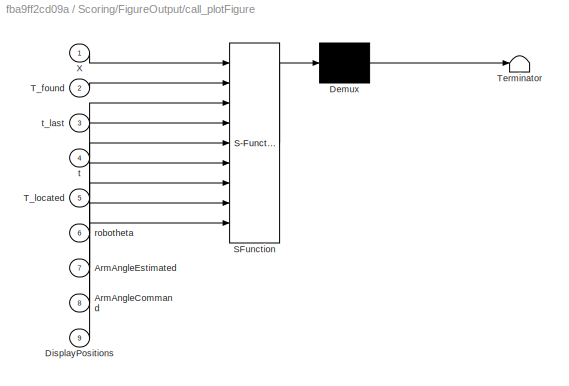
BLOCK [SubSystem] Scoring/FigureOutput/call_plotFigure
  ErrorFcn = Stateflow.Translate.translate
  PermitHierarchicalResolution = ExplicitOnly
  Ports = [9]
  RequestExecContextInheritance = off
  SFBlockType = MATLAB Function
  TreatAsAtomicUnit = on
  Variant = off
BLOCK [Demux] Scoring/FigureOutput/call_plotFigure/ Demux 
  Outputs = 1
  Ports = [1, 1]
BLOCK [S-Function] Scoring/FigureOutput/call_plotFigure/ SFunction 
  EnableBusSupport = on
  FunctionName = sf_sfun
  Parameters = SitesPositions,lcam,pcam
  PortCounts = [9 1]
  Ports = [9, 1]
  SFunctionDeploymentMode = off
  Tag = Stateflow S-Function SimpleDistance 6
BLOCK [Terminator] Scoring/FigureOutput/call_plotFigure/ Terminator 
BLOCK [Inport] Scoring/FigureOutput/call_plotFigure/ArmAngleCommand
  IconDisplay = Port number
  Port = 8
BLOCK [Inport] Scoring/FigureOutput/call_plotFigure/ArmAngleEstimated
  IconDisplay = Port number
  Port = 7
BLOCK [Inport] Scoring/FigureOutput/call_plotFigure/DisplayPositions
  IconDisplay = Port number
  Port = 9
BLOCK [Inport] Scoring/FigureOutput/call_plotFigure/T_found
  IconDisplay = Port number
  Port = 2
BLOCK [Inport] Scoring/FigureOutput/call_plotFigure/T_located
  IconDisplay = Port number
  Port = 5
BLOCK [Inport] Scoring/FigureOutput/call_plotFigure/X
  IconDisplay = Port number
BLOCK [Inport] Scoring/FigureOutput/call_plotFigure/robotheta
  IconDisplay = Port number
  Port = 6
BLOCK [Inport] Scoring/FigureOutput/call_plotFigure/t
  IconDisplay = Port number
  Port = 4
BLOCK [Inport] Scoring/FigureOutput/call_plotFigure/t_last
  IconDisplay = Port number
  Port = 3
BLOCK [Inport] Scoring/FigureOutput/locatedTargets
  IconDisplay = Port number
  Port = 5
BLOCK [Inport] Scoring/FigureOutput/robottheta
  IconDisplay = Port number
  Port = 6
BLOCK [SubSystem] Scoring/Referee
  Ports = [2, 3]
  RequestExecContextInheritance = off
  Variant = off
BLOCK [DigitalClock] Scoring/Referee/Digital Clock1
  SampleTime = Ts
BLOCK [Outport] Scoring/Referee/Elapsed Time_sec
  IconDisplay = Port number
  Port = 3
  PortDimensions = 1
BLOCK [SubSystem] Scoring/Referee/Referee
  ErrorFcn = Stateflow.Translate.translate
  PermitHierarchicalResolution = ExplicitOnly
  Ports = [3, 3]
  RequestExecContextInheritance = off
  SFBlockType = Chart
  TreatAsAtomicUnit = on
  Variant = off
BLOCK [Demux] Scoring/Referee/Referee/ Demux 
  Outputs = 1
  Ports = [1, 1]
BLOCK [S-Function] Scoring/Referee/Referee/ SFunction 
  EnableBusSupport = on
  FunctionName = sf_sfun
  Parameters = SitesPositions,startPos
  PortCounts = [3 4]
  Ports = [3, 4]
  SFunctionDeploymentMode = off
  Tag = Stateflow S-Function SimpleDistance 5
BLOCK [Terminator] Scoring/Referee/Referee/ Terminator 
BLOCK [Inport] Scoring/Referee/Referee/StartFlag
  IconDisplay = Port number
  Port = 2
BLOCK [Outport] Scoring/Referee/Referee/elapsedTime
  IconDisplay = Port number
  Port = 2
BLOCK [Inport] Scoring/Referee/Referee/robotPosition
  IconDisplay = Port number
BLOCK [Inport] Scoring/Referee/Referee/sim_time
  IconDisplay = Port number
  Port = 3
BLOCK [Outport] Scoring/Referee/Referee/targetsFound
  IconDisplay = Port number
  Port = 3
BLOCK [Outport] Scoring/Referee/Referee/timeLastTargetFound
  IconDisplay = Port number
BLOCK [Reshape] Scoring/Referee/Reshape
  OutputDimensionality = Row vector (2-D)
  Ports = [1, 1]
BLOCK [Inport] Scoring/Referee/Robot Position_m
  IconDisplay = Port number
  SampleTime = Ts
BLOCK [Inport] Scoring/Referee/Start Flag
  IconDisplay = Port number
  OutDataTypeStr = boolean
  Port = 2
  SampleTime = Ts
BLOCK [Outport] Scoring/Referee/Targets Located
  IconDisplay = Port number
BLOCK [Outport] Scoring/Referee/Time Last Target Found
  IconDisplay = Port number
  Port = 2
  PortDimensions = 1
  VarSizeSig = No
BLOCK [Inport] Scoring/Robot2Scoring
  IconDisplay = Port number
ANNOTATION (root): The only block that can be modified is InputProcessing . This block decides the distance, direction and speed at which the robot should navigate.
ANNOTATION (root): <copyright redacted>
LINE InputProcessing/Algorithm:1 -> InputProcessing/RobotCmd:1
LINE InputProcessing/Robot:1 -> InputProcessing/Algorithm:1
LINE InputProcessing:1 -> RobotModel:1
LINE RobotModel/Bus Creator:1 -> RobotModel/Robot2InputProcessing:1
NET RobotModel/Controller/Command2Demand/DifferentialCommand:1 -> RobotModel/Controller/Command2Demand/Sum1:1, RobotModel/Controller/Command2Demand/Sum:2
NET RobotModel/Controller/Command2Demand/ForwardCommand:1 -> RobotModel/Controller/Command2Demand/Sum1:2, RobotModel/Controller/Command2Demand/Sum:1
LINE RobotModel/Controller/Command2Demand/Mux:1 -> RobotModel/Controller/Command2Demand/MotorDemand:1
LINE RobotModel/Controller/Command2Demand/Saturation1:1 -> RobotModel/Controller/Command2Demand/Mux:2
LINE RobotModel/Controller/Command2Demand/Saturation:1 -> RobotModel/Controller/Command2Demand/Mux:1
LINE RobotModel/Controller/Command2Demand/Sum1:1 -> RobotModel/Controller/Command2Demand/Saturation1:1
LINE RobotModel/Controller/Command2Demand/Sum:1 -> RobotModel/Controller/Command2Demand/Saturation:1
LINE RobotModel/Controller/Command2Demand:1 -> RobotModel/Controller/MotorDemand:1
LINE RobotModel/Controller/Encoders:1 -> RobotModel/Controller/FeedbackController:1
LINE RobotModel/Controller/FeedbackController/AngleController:1 -> RobotModel/Controller/FeedbackController/DifferentialCommand:1
LINE RobotModel/Controller/FeedbackController/Bus Creator:1 -> RobotModel/Controller/FeedbackController/RemainingAngleDistancePrev:1
NET RobotModel/Controller/FeedbackController/Cmd:1 -> RobotModel/Controller/FeedbackController/ControllerModesAngle:2, RobotModel/Controller/FeedbackController/ControllerModesDistance:2
NET RobotModel/Controller/FeedbackController/ControllerModesAngle:1 -> RobotModel/Controller/FeedbackController/AngleController:1, RobotModel/Controller/FeedbackController/Bus Creator:1
LINE RobotModel/Controller/FeedbackController/ControllerModesAngle:2 -> RobotModel/Controller/FeedbackController/AngleController:3
LINE RobotModel/Controller/FeedbackController/ControllerModesAngle:3 -> RobotModel/Controller/FeedbackController/AngleController:2
NET RobotModel/Controller/FeedbackController/ControllerModesDistance:1 -> RobotModel/Controller/FeedbackController/Bus Creator:2, RobotModel/Controller/FeedbackController/DistanceController:1
LINE RobotModel/Controller/FeedbackController/ControllerModesDistance:2 -> RobotModel/Controller/FeedbackController/DistanceController:3
LINE RobotModel/Controller/FeedbackController/ControllerModesDistance:3 -> RobotModel/Controller/FeedbackController/DistanceController:2
LINE RobotModel/Controller/FeedbackController/DistanceController:1 -> RobotModel/Controller/FeedbackController/ForwardCommand:1
NET RobotModel/Controller/FeedbackController/Encoders:1 -> RobotModel/Controller/FeedbackController/ControllerModesAngle:1, RobotModel/Controller/FeedbackController/ControllerModesDistance:1
LINE RobotModel/Controller/FeedbackController/RemainingAngleDistancePrev:1 -> RobotModel/Controller/FeedbackController/RemainingAngleDistance:1
LINE RobotModel/Controller/FeedbackController:1 -> RobotModel/Controller/Command2Demand:1
LINE RobotModel/Controller/FeedbackController:2 -> RobotModel/Controller/Command2Demand:2
LINE RobotModel/Controller/FeedbackController:3 -> RobotModel/Controller/RemainingAngleDistance:1
LINE RobotModel/Controller/RobotCmd:1 -> RobotModel/Controller/FeedbackController:2
LINE RobotModel/Controller:1 -> RobotModel/Robot:1
LINE RobotModel/Controller:2 -> RobotModel/Bus Creator:6
LINE RobotModel/Robot/Bus Creator1:1 -> RobotModel/Robot/Robot2Scoring:1
LINE RobotModel/Robot/MotorDemand:1 -> RobotModel/Robot/RobotDynamic:2
LINE RobotModel/Robot/RobotDynamic/Data Type Conversion:1 -> RobotModel/Robot/RobotDynamic/Encoders:1
LINE RobotModel/Robot/RobotDynamic/MotorDemand:1 -> RobotModel/Robot/RobotDynamic/MotorDynamics:1
LINE RobotModel/Robot/RobotDynamic/MotorDynamics/Demux:1 -> RobotModel/Robot/RobotDynamic/MotorDynamics/Left_motor_table:1
LINE RobotModel/Robot/RobotDynamic/MotorDynamics/Demux:2 -> RobotModel/Robot/RobotDynamic/MotorDynamics/Right_motor_table:1
LINE RobotModel/Robot/RobotDynamic/MotorDynamics/Dynamics:1 -> RobotModel/Robot/RobotDynamic/MotorDynamics/WheelsSpeed:1
LINE RobotModel/Robot/RobotDynamic/MotorDynamics/Left_motor_table:1 -> RobotModel/Robot/RobotDynamic/MotorDynamics/Mux1:1
LINE RobotModel/Robot/RobotDynamic/MotorDynamics/MotorDemand:1 -> RobotModel/Robot/RobotDynamic/MotorDynamics/Demux:1
LINE RobotModel/Robot/RobotDynamic/MotorDynamics/Mux1:1 -> RobotModel/Robot/RobotDynamic/MotorDynamics/Dynamics:1
LINE RobotModel/Robot/RobotDynamic/MotorDynamics/Right_motor_table:1 -> RobotModel/Robot/RobotDynamic/MotorDynamics/Mux1:2
NET RobotModel/Robot/RobotDynamic/MotorDynamics:1 -> RobotModel/Robot/RobotDynamic/Sensors:1, RobotModel/Robot/RobotDynamic/Trajectory:1
LINE RobotModel/Robot/RobotDynamic/Sensors/Encoder Quantization:1 -> RobotModel/Robot/RobotDynamic/Sensors/EncodersCount:1
LINE RobotModel/Robot/RobotDynamic/Sensors/Encoder Reading:1 -> RobotModel/Robot/RobotDynamic/Sensors/Encoder Quantization:1
LINE RobotModel/Robot/RobotDynamic/Sensors/WheelsSpeed:1 -> RobotModel/Robot/RobotDynamic/Sensors/angular_position:1
LINE RobotModel/Robot/RobotDynamic/Sensors/angular_position:1 -> RobotModel/Robot/RobotDynamic/Sensors/deg2encoderCount:1
LINE RobotModel/Robot/RobotDynamic/Sensors/deg2encoderCount:1 -> RobotModel/Robot/RobotDynamic/Sensors/Encoder Reading:1
LINE RobotModel/Robot/RobotDynamic/Sensors:1 -> RobotModel/Robot/RobotDynamic/correction_encodercount:1
LINE RobotModel/Robot/RobotDynamic/Trajectory/Average:1 -> RobotModel/Robot/RobotDynamic/Trajectory/Product:1
LINE RobotModel/Robot/RobotDynamic/Trajectory/AxleLengthReal:1 -> RobotModel/Robot/RobotDynamic/Trajectory/WheelDistance:1
NET RobotModel/Robot/RobotDynamic/Trajectory/Demux:1 -> RobotModel/Robot/RobotDynamic/Trajectory/Sum1:1, RobotModel/Robot/RobotDynamic/Trajectory/Sum:1
NET RobotModel/Robot/RobotDynamic/Trajectory/Demux:2 -> RobotModel/Robot/RobotDynamic/Trajectory/Sum1:2, RobotModel/Robot/RobotDynamic/Trajectory/Sum:2
LINE RobotModel/Robot/RobotDynamic/Trajectory/Inverse:1 -> RobotModel/Robot/RobotDynamic/Trajectory/angle:1
LINE RobotModel/Robot/RobotDynamic/Trajectory/Product1:1 -> RobotModel/Robot/RobotDynamic/Trajectory/Slipping:1
LINE RobotModel/Robot/RobotDynamic/Trajectory/Product:1 -> RobotModel/Robot/RobotDynamic/Trajectory/mps2cmps:1
LINE RobotModel/Robot/RobotDynamic/Trajectory/Slipping/Abs:1 -> RobotModel/Robot/RobotDynamic/Trajectory/Slipping/Rate Limiter:1
LINE RobotModel/Robot/RobotDynamic/Trajectory/Slipping/Product2:1 -> RobotModel/Robot/RobotDynamic/Trajectory/Slipping/speedSlip:1
LINE RobotModel/Robot/RobotDynamic/Trajectory/Slipping/Rate Limiter:1 -> RobotModel/Robot/RobotDynamic/Trajectory/Slipping/Product2:2
LINE RobotModel/Robot/RobotDynamic/Trajectory/Slipping/Sign:1 -> RobotModel/Robot/RobotDynamic/Trajectory/Slipping/Product2:1
NET RobotModel/Robot/RobotDynamic/Trajectory/Slipping/speedNoSlip:1 -> RobotModel/Robot/RobotDynamic/Trajectory/Slipping/Abs:1, RobotModel/Robot/RobotDynamic/Trajectory/Slipping/Sign:1
LINE RobotModel/Robot/RobotDynamic/Trajectory/Slipping:1 -> RobotModel/Robot/RobotDynamic/Trajectory/Demux:1
LINE RobotModel/Robot/RobotDynamic/Trajectory/Sum1:1 -> RobotModel/Robot/RobotDynamic/Trajectory/Inverse:1
LINE RobotModel/Robot/RobotDynamic/Trajectory/Sum:1 -> RobotModel/Robot/RobotDynamic/Trajectory/Average:1
LINE RobotModel/Robot/RobotDynamic/Trajectory/Trigonometric Function1:1 -> RobotModel/Robot/RobotDynamic/Trajectory/Vector Concatenate:2
LINE RobotModel/Robot/RobotDynamic/Trajectory/Trigonometric Function2:1 -> RobotModel/Robot/RobotDynamic/Trajectory/Vector Concatenate:1
LINE RobotModel/Robot/RobotDynamic/Trajectory/Vector Concatenate:1 -> RobotModel/Robot/RobotDynamic/Trajectory/Product:2
LINE RobotModel/Robot/RobotDynamic/Trajectory/Wheel Radius:1 -> RobotModel/Robot/RobotDynamic/Trajectory/Product1:1
LINE RobotModel/Robot/RobotDynamic/Trajectory/WheelDistance:1 -> RobotModel/Robot/RobotDynamic/Trajectory/Inverse:2
LINE RobotModel/Robot/RobotDynamic/Trajectory/WheelsRadiusReal:1 -> RobotModel/Robot/RobotDynamic/Trajectory/Product1:2
LINE RobotModel/Robot/RobotDynamic/Trajectory/WheelsSpeed:1 -> RobotModel/Robot/RobotDynamic/Trajectory/deg//s to rad//s:1
NET RobotModel/Robot/RobotDynamic/Trajectory/angle:1 -> RobotModel/Robot/RobotDynamic/Trajectory/Trigonometric Function1:1, RobotModel/Robot/RobotDynamic/Trajectory/Trigonometric Function2:1, RobotModel/Robot/RobotDynamic/Trajectory/rad2deg:1
LINE RobotModel/Robot/RobotDynamic/Trajectory/deg//s to rad//s:1 -> RobotModel/Robot/RobotDynamic/Trajectory/Wheel Radius:1
LINE RobotModel/Robot/RobotDynamic/Trajectory/mps2cmps:1 -> RobotModel/Robot/RobotDynamic/Trajectory/position:1
LINE RobotModel/Robot/RobotDynamic/Trajectory/position:1 -> RobotModel/Robot/RobotDynamic/Trajectory/RobotPositionXY:1
LINE RobotModel/Robot/RobotDynamic/Trajectory/rad2deg:1 -> RobotModel/Robot/RobotDynamic/Trajectory/Theta:1
LINE RobotModel/Robot/RobotDynamic/Trajectory:1 -> RobotModel/Robot/RobotDynamic/Zero-Order Hold1:1
LINE RobotModel/Robot/RobotDynamic/Trajectory:2 -> RobotModel/Robot/RobotDynamic/Zero-Order Hold:1
LINE RobotModel/Robot/RobotDynamic/Zero-Order Hold1:1 -> RobotModel/Robot/RobotDynamic/RobotPositionXY:1
LINE RobotModel/Robot/RobotDynamic/Zero-Order Hold:1 -> RobotModel/Robot/RobotDynamic/Theta:1
LINE RobotModel/Robot/RobotDynamic/correction_encodercount/Divide:1 -> RobotModel/Robot/RobotDynamic/correction_encodercount/Product:2
LINE RobotModel/Robot/RobotDynamic/correction_encodercount/EncoderCount:1 -> RobotModel/Robot/RobotDynamic/correction_encodercount/Product:1
LINE RobotModel/Robot/RobotDynamic/correction_encodercount/Product:1 -> RobotModel/Robot/RobotDynamic/correction_encodercount/EncoderCountCorr:1
LINE RobotModel/Robot/RobotDynamic/correction_encodercount/WheelRadius:1 -> RobotModel/Robot/RobotDynamic/correction_encodercount/Divide:1
LINE RobotModel/Robot/RobotDynamic/correction_encodercount/WheelRadiusReal:1 -> RobotModel/Robot/RobotDynamic/correction_encodercount/Divide:2
LINE RobotModel/Robot/RobotDynamic/correction_encodercount:1 -> RobotModel/Robot/RobotDynamic/Data Type Conversion:1
LINE RobotModel/Robot/RobotDynamic/parameterCorrections:1 -> RobotModel/Robot/RobotDynamic/real_parameters:1
LINE RobotModel/Robot/RobotDynamic/real_parameters/Add1:1 -> RobotModel/Robot/RobotDynamic/real_parameters/axle_length:1
LINE RobotModel/Robot/RobotDynamic/real_parameters/Add:1 -> RobotModel/Robot/RobotDynamic/real_parameters/wheel_radius:1
LINE RobotModel/Robot/RobotDynamic/real_parameters/AxleLength:1 -> RobotModel/Robot/RobotDynamic/real_parameters/Add1:1
LINE RobotModel/Robot/RobotDynamic/real_parameters/Bus Selector1:1 -> RobotModel/Robot/RobotDynamic/real_parameters/Add1:2
LINE RobotModel/Robot/RobotDynamic/real_parameters/Bus Selector:1 -> RobotModel/Robot/RobotDynamic/real_parameters/Mux:1
LINE RobotModel/Robot/RobotDynamic/real_parameters/Bus Selector:2 -> RobotModel/Robot/RobotDynamic/real_parameters/Mux:2
LINE RobotModel/Robot/RobotDynamic/real_parameters/Mux:1 -> RobotModel/Robot/RobotDynamic/real_parameters/Add:2
LINE RobotModel/Robot/RobotDynamic/real_parameters/WheelRadius:1 -> RobotModel/Robot/RobotDynamic/real_parameters/Add:1
NET RobotModel/Robot/RobotDynamic/real_parameters/parameterCorrections:1 -> RobotModel/Robot/RobotDynamic/real_parameters/Bus Selector1:1, RobotModel/Robot/RobotDynamic/real_parameters/Bus Selector:1
NET RobotModel/Robot/RobotDynamic/real_parameters:1 -> RobotModel/Robot/RobotDynamic/Trajectory:2, RobotModel/Robot/RobotDynamic/correction_encodercount:2
LINE RobotModel/Robot/RobotDynamic/real_parameters:2 -> RobotModel/Robot/RobotDynamic/Trajectory:3
LINE RobotModel/Robot/RobotDynamic:1 -> RobotModel/Robot/Sensors Camera_Distance:1
LINE RobotModel/Robot/RobotDynamic:2 -> RobotModel/Robot/Sensors Camera_Distance:2
LINE RobotModel/Robot/RobotDynamic:3 -> RobotModel/Robot/EncoderCount:1
LINE RobotModel/Robot/Sensors Camera_Distance/Bus Selector:1 -> RobotModel/Robot/Sensors Camera_Distance/Distance_sensor:3
LINE RobotModel/Robot/Sensors Camera_Distance/Camera/Bruit/Add:1 -> RobotModel/Robot/Sensors Camera_Distance/Camera/Bruit/Out1:1
LINE RobotModel/Robot/Sensors Camera_Distance/Camera/Bruit/Data Type Conversion4:1 -> RobotModel/Robot/Sensors Camera_Distance/Camera/Bruit/Product:1
NET RobotModel/Robot/Sensors Camera_Distance/Camera/Bruit/In1:1 -> RobotModel/Robot/Sensors Camera_Distance/Camera/Bruit/Add:2, RobotModel/Robot/Sensors Camera_Distance/Camera/Bruit/Product:2
LINE RobotModel/Robot/Sensors Camera_Distance/Camera/Bruit/Product:1 -> RobotModel/Robot/Sensors Camera_Distance/Camera/Bruit/Add:1
LINE RobotModel/Robot/Sensors Camera_Distance/Camera/Bruit/Uniform Random Number:1 -> RobotModel/Robot/Sensors Camera_Distance/Camera/Bruit/Data Type Conversion4:1
LINE RobotModel/Robot/Sensors Camera_Distance/Camera/Bruit1/Add:1 -> RobotModel/Robot/Sensors Camera_Distance/Camera/Bruit1/Out1:1
LINE RobotModel/Robot/Sensors Camera_Distance/Camera/Bruit1/Data Type Conversion4:1 -> RobotModel/Robot/Sensors Camera_Distance/Camera/Bruit1/Product:1
NET RobotModel/Robot/Sensors Camera_Distance/Camera/Bruit1/In1:1 -> RobotModel/Robot/Sensors Camera_Distance/Camera/Bruit1/Add:2, RobotModel/Robot/Sensors Camera_Distance/Camera/Bruit1/Product:2
LINE RobotModel/Robot/Sensors Camera_Distance/Camera/Bruit1/Product:1 -> RobotModel/Robot/Sensors Camera_Distance/Camera/Bruit1/Add:1
LINE RobotModel/Robot/Sensors Camera_Distance/Camera/Bruit1/Uniform Random Number:1 -> RobotModel/Robot/Sensors Camera_Distance/Camera/Bruit1/Data Type Conversion4:1
LINE RobotModel/Robot/Sensors Camera_Distance/Camera/Bruit1:1 -> RobotModel/Robot/Sensors Camera_Distance/Camera/Transport Delay1:1
LINE RobotModel/Robot/Sensors Camera_Distance/Camera/Bruit:1 -> RobotModel/Robot/Sensors Camera_Distance/Camera/Transport Delay:1
LINE RobotModel/Robot/Sensors Camera_Distance/Camera/Data Type Conversion4:1 -> RobotModel/Robot/Sensors Camera_Distance/Camera/Distance:1
LINE RobotModel/Robot/Sensors Camera_Distance/Camera/Data Type Conversion5:1 -> RobotModel/Robot/Sensors Camera_Distance/Camera/Bearing:1
LINE RobotModel/Robot/Sensors Camera_Distance/Camera/Transport Delay/Data Type Conversion4:1 -> RobotModel/Robot/Sensors Camera_Distance/Camera/Transport Delay/Zero-Order Hold:1
LINE RobotModel/Robot/Sensors Camera_Distance/Camera/Transport Delay/Data Type Conversion:1 -> RobotModel/Robot/Sensors Camera_Distance/Camera/Transport Delay/Transport Delay:1
LINE RobotModel/Robot/Sensors Camera_Distance/Camera/Transport Delay/In1:1 -> RobotModel/Robot/Sensors Camera_Distance/Camera/Transport Delay/Data Type Conversion:1
LINE RobotModel/Robot/Sensors Camera_Distance/Camera/Transport Delay/Transport Delay:1 -> RobotModel/Robot/Sensors Camera_Distance/Camera/Transport Delay/Data Type Conversion4:1
LINE RobotModel/Robot/Sensors Camera_Distance/Camera/Transport Delay/Zero-Order Hold:1 -> RobotModel/Robot/Sensors Camera_Distance/Camera/Transport Delay/Out1:1
LINE RobotModel/Robot/Sensors Camera_Distance/Camera/Transport Delay1/Data Type Conversion4:1 -> RobotModel/Robot/Sensors Camera_Distance/Camera/Transport Delay1/Zero-Order Hold:1
LINE RobotModel/Robot/Sensors Camera_Distance/Camera/Transport Delay1/Data Type Conversion:1 -> RobotModel/Robot/Sensors Camera_Distance/Camera/Transport Delay1/Transport Delay:1
LINE RobotModel/Robot/Sensors Camera_Distance/Camera/Transport Delay1/In1:1 -> RobotModel/Robot/Sensors Camera_Distance/Camera/Transport Delay1/Data Type Conversion:1
LINE RobotModel/Robot/Sensors Camera_Distance/Camera/Transport Delay1/Transport Delay:1 -> RobotModel/Robot/Sensors Camera_Distance/Camera/Transport Delay1/Data Type Conversion4:1
LINE RobotModel/Robot/Sensors Camera_Distance/Camera/Transport Delay1/Zero-Order Hold:1 -> RobotModel/Robot/Sensors Camera_Distance/Camera/Transport Delay1/Out1:1
LINE RobotModel/Robot/Sensors Camera_Distance/Camera/Transport Delay1:1 -> RobotModel/Robot/Sensors Camera_Distance/Camera/Data Type Conversion5:1
LINE RobotModel/Robot/Sensors Camera_Distance/Camera/Transport Delay:1 -> RobotModel/Robot/Sensors Camera_Distance/Camera/Data Type Conversion4:1
LINE RobotModel/Robot/Sensors Camera_Distance/Camera/dist_bearing2locatedTargets:1 -> RobotModel/Robot/Sensors Camera_Distance/Camera/LocatedTargets:1
NET RobotModel/Robot/Sensors Camera_Distance/Camera/relative_to_targets:1 -> RobotModel/Robot/Sensors Camera_Distance/Camera/Bruit:1, RobotModel/Robot/Sensors Camera_Distance/Camera/dist_bearing2locatedTargets:2
NET RobotModel/Robot/Sensors Camera_Distance/Camera/relative_to_targets:2 -> RobotModel/Robot/Sensors Camera_Distance/Camera/Bruit1:1, RobotModel/Robot/Sensors Camera_Distance/Camera/dist_bearing2locatedTargets:3
NET RobotModel/Robot/Sensors Camera_Distance/Camera/robotPos:1 -> RobotModel/Robot/Sensors Camera_Distance/Camera/dist_bearing2locatedTargets:1, RobotModel/Robot/Sensors Camera_Distance/Camera/relative_to_targets:1
NET RobotModel/Robot/Sensors Camera_Distance/Camera/robotTheta:1 -> RobotModel/Robot/Sensors Camera_Distance/Camera/dist_bearing2locatedTargets:4, RobotModel/Robot/Sensors Camera_Distance/Camera/relative_to_targets:2
LINE RobotModel/Robot/Sensors Camera_Distance/Camera:1 -> RobotModel/Robot/Sensors Camera_Distance/Distance:1
LINE RobotModel/Robot/Sensors Camera_Distance/Camera:2 -> RobotModel/Robot/Sensors Camera_Distance/LocatedTargets:1
LINE RobotModel/Robot/Sensors Camera_Distance/Camera:3 -> RobotModel/Robot/Sensors Camera_Distance/Bearing:1
LINE RobotModel/Robot/Sensors Camera_Distance/Data Type Conversion3:1 -> RobotModel/Robot/Sensors Camera_Distance/Position:1
LINE RobotModel/Robot/Sensors Camera_Distance/Distance_sensor/ArmAngleEstimator/  ArmAngleCommand:1 -> RobotModel/Robot/Sensors Camera_Distance/Distance_sensor/ArmAngleEstimator/Add2:1
LINE RobotModel/Robot/Sensors Camera_Distance/Distance_sensor/ArmAngleEstimator/  ServoZeroPos:1 -> RobotModel/Robot/Sensors Camera_Distance/Distance_sensor/ArmAngleEstimator/Add2:2
LINE RobotModel/Robot/Sensors Camera_Distance/Distance_sensor/ArmAngleEstimator/Abs:1 -> RobotModel/Robot/Sensors Camera_Distance/Distance_sensor/ArmAngleEstimator/Switch:2
LINE RobotModel/Robot/Sensors Camera_Distance/Distance_sensor/ArmAngleEstimator/Add1:1 -> RobotModel/Robot/Sensors Camera_Distance/Distance_sensor/ArmAngleEstimator/Switch:1
NET RobotModel/Robot/Sensors Camera_Distance/Distance_sensor/ArmAngleEstimator/Add2:1 -> RobotModel/Robot/Sensors Camera_Distance/Distance_sensor/ArmAngleEstimator/Add:2, RobotModel/Robot/Sensors Camera_Distance/Distance_sensor/ArmAngleEstimator/Switch:3
NET RobotModel/Robot/Sensors Camera_Distance/Distance_sensor/ArmAngleEstimator/Add:1 -> RobotModel/Robot/Sensors Camera_Distance/Distance_sensor/ArmAngleEstimator/Abs:1, RobotModel/Robot/Sensors Camera_Distance/Distance_sensor/ArmAngleEstimator/Sign:1
LINE RobotModel/Robot/Sensors Camera_Distance/Distance_sensor/ArmAngleEstimator/Constant:1 -> RobotModel/Robot/Sensors Camera_Distance/Distance_sensor/ArmAngleEstimator/Product:1
LINE RobotModel/Robot/Sensors Camera_Distance/Distance_sensor/ArmAngleEstimator/Product:1 -> RobotModel/Robot/Sensors Camera_Distance/Distance_sensor/ArmAngleEstimator/Add1:2
LINE RobotModel/Robot/Sensors Camera_Distance/Distance_sensor/ArmAngleEstimator/Sign:1 -> RobotModel/Robot/Sensors Camera_Distance/Distance_sensor/ArmAngleEstimator/Product:2
LINE RobotModel/Robot/Sensors Camera_Distance/Distance_sensor/ArmAngleEstimator/Switch:1 -> RobotModel/Robot/Sensors Camera_Distance/Distance_sensor/ArmAngleEstimator/Unit Delay1:1
NET RobotModel/Robot/Sensors Camera_Distance/Distance_sensor/ArmAngleEstimator/Unit Delay1:1 -> RobotModel/Robot/Sensors Camera_Distance/Distance_sensor/ArmAngleEstimator/Add1:1, RobotModel/Robot/Sensors Camera_Distance/Distance_sensor/ArmAngleEstimator/Add:1, RobotModel/Robot/Sensors Camera_Distance/Distance_sensor/ArmAngleEstimator/ArmAngleEstimated:1
NET RobotModel/Robot/Sensors Camera_Distance/Distance_sensor/ArmAngleEstimator:1 -> RobotModel/Robot/Sensors Camera_Distance/Distance_sensor/ArmAngleEstimated:1, RobotModel/Robot/Sensors Camera_Distance/Distance_sensor/arm_distance:3
LINE RobotModel/Robot/Sensors Camera_Distance/Distance_sensor/Scanner:1 -> RobotModel/Robot/Sensors Camera_Distance/Distance_sensor/scanner_status:1
LINE RobotModel/Robot/Sensors Camera_Distance/Distance_sensor/Scanner:2 -> RobotModel/Robot/Sensors Camera_Distance/Distance_sensor/scanner_values:1
LINE RobotModel/Robot/Sensors Camera_Distance/Distance_sensor/Scanner:3 -> RobotModel/Robot/Sensors Camera_Distance/Distance_sensor/ArmAngleEstimator:2
LINE RobotModel/Robot/Sensors Camera_Distance/Distance_sensor/ServoZeroPos:1 -> RobotModel/Robot/Sensors Camera_Distance/Distance_sensor/ArmAngleEstimator:1
LINE RobotModel/Robot/Sensors Camera_Distance/Distance_sensor/arm_distance:1 -> RobotModel/Robot/Sensors Camera_Distance/Distance_sensor/Scanner:1
LINE RobotModel/Robot/Sensors Camera_Distance/Distance_sensor/robotPos:1 -> RobotModel/Robot/Sensors Camera_Distance/Distance_sensor/arm_distance:1
LINE RobotModel/Robot/Sensors Camera_Distance/Distance_sensor/robotTheta:1 -> RobotModel/Robot/Sensors Camera_Distance/Distance_sensor/arm_distance:2
LINE RobotModel/Robot/Sensors Camera_Distance/Distance_sensor:1 -> RobotModel/Robot/Sensors Camera_Distance/ArmAngleEstimated:1
LINE RobotModel/Robot/Sensors Camera_Distance/Distance_sensor:2 -> RobotModel/Robot/Sensors Camera_Distance/ScannerStatus:1
LINE RobotModel/Robot/Sensors Camera_Distance/Distance_sensor:3 -> RobotModel/Robot/Sensors Camera_Distance/ScannerValues:1
LINE RobotModel/Robot/Sensors Camera_Distance/Go:1 -> RobotModel/Robot/Sensors Camera_Distance/GoFlag:1
LINE RobotModel/Robot/Sensors Camera_Distance/I2C/Bus Creator:1 -> RobotModel/Robot/Sensors Camera_Distance/I2C/parameterCorrections:1
LINE RobotModel/Robot/Sensors Camera_Distance/I2C/axle_length:1 -> RobotModel/Robot/Sensors Camera_Distance/I2C/Bus Creator:6
LINE RobotModel/Robot/Sensors Camera_Distance/I2C/motor_left_deadband:1 -> RobotModel/Robot/Sensors Camera_Distance/I2C/Bus Creator:3
LINE RobotModel/Robot/Sensors Camera_Distance/I2C/motor_right_deadband:1 -> RobotModel/Robot/Sensors Camera_Distance/I2C/Bus Creator:4
LINE RobotModel/Robot/Sensors Camera_Distance/I2C/servo_zero_position:1 -> RobotModel/Robot/Sensors Camera_Distance/I2C/Bus Creator:5
LINE RobotModel/Robot/Sensors Camera_Distance/I2C/wheel_left_radius:1 -> RobotModel/Robot/Sensors Camera_Distance/I2C/Bus Creator:1
LINE RobotModel/Robot/Sensors Camera_Distance/I2C/wheel_right_radius:1 -> RobotModel/Robot/Sensors Camera_Distance/I2C/Bus Creator:2
NET RobotModel/Robot/Sensors Camera_Distance/I2C:1 -> RobotModel/Robot/Sensors Camera_Distance/Bus Selector:1, RobotModel/Robot/Sensors Camera_Distance/parameterCorrections:1
LINE RobotModel/Robot/Sensors Camera_Distance/Reshape:1 -> RobotModel/Robot/Sensors Camera_Distance/Data Type Conversion3:1
NET RobotModel/Robot/Sensors Camera_Distance/RobotPositionXY:1 -> RobotModel/Robot/Sensors Camera_Distance/Camera:1, RobotModel/Robot/Sensors Camera_Distance/Distance_sensor:1, RobotModel/Robot/Sensors Camera_Distance/Reshape:1
NET RobotModel/Robot/Sensors Camera_Distance/Theta:1 -> RobotModel/Robot/Sensors Camera_Distance/Camera:2, RobotModel/Robot/Sensors Camera_Distance/Distance_sensor:2, RobotModel/Robot/Sensors Camera_Distance/RobotAngle:1
LINE RobotModel/Robot/Sensors Camera_Distance:1 -> RobotModel/Robot/RobotDynamic:1
LINE RobotModel/Robot/Sensors Camera_Distance:10 -> RobotModel/Robot/Bus Creator1:5
LINE RobotModel/Robot/Sensors Camera_Distance:2 -> RobotModel/Robot/Distance:1
LINE RobotModel/Robot/Sensors Camera_Distance:3 -> RobotModel/Robot/Bearing:1
LINE RobotModel/Robot/Sensors Camera_Distance:4 -> RobotModel/Robot/ScannerStatus:1
LINE RobotModel/Robot/Sensors Camera_Distance:5 -> RobotModel/Robot/ScannerValues:1
NET RobotModel/Robot/Sensors Camera_Distance:6 -> RobotModel/Robot/Bus Creator1:1, RobotModel/Robot/Go:1
LINE RobotModel/Robot/Sensors Camera_Distance:7 -> RobotModel/Robot/Bus Creator1:2
LINE RobotModel/Robot/Sensors Camera_Distance:8 -> RobotModel/Robot/Bus Creator1:3
LINE RobotModel/Robot/Sensors Camera_Distance:9 -> RobotModel/Robot/Bus Creator1:4
NET RobotModel/Robot:1 -> RobotModel/Bus Creator:1, RobotModel/Controller:1, RobotModel/estimate_position:1
LINE RobotModel/Robot:2 -> RobotModel/Bus Creator:2
LINE RobotModel/Robot:3 -> RobotModel/Bus Creator:3
LINE RobotModel/Robot:4 -> RobotModel/Bus Creator:4
LINE RobotModel/Robot:5 -> RobotModel/Bus Creator:5
LINE RobotModel/Robot:6 -> RobotModel/Go:1
LINE RobotModel/Robot:7 -> RobotModel/Robot2Scoring:1
LINE RobotModel/RobotCmd:1 -> RobotModel/Controller:2
LINE RobotModel/estimate_position/Add1:1 -> RobotModel/estimate_position/Unit Delay1:1
NET RobotModel/estimate_position/Add4:1 -> RobotModel/estimate_position/Mux:1, RobotModel/estimate_position/Unit Delay2:1
NET RobotModel/estimate_position/Add5:1 -> RobotModel/estimate_position/Mux:2, RobotModel/estimate_position/Unit Delay3:1
LINE RobotModel/estimate_position/Add:1 -> RobotModel/estimate_position/Polar to Cartesian:2
LINE RobotModel/estimate_position/Demux:1 -> RobotModel/estimate_position/distance_bearing:1
LINE RobotModel/estimate_position/Demux:2 -> RobotModel/estimate_position/distance_bearing:2
LINE RobotModel/estimate_position/Encoders:1 -> RobotModel/estimate_position/enc2dist:1
LINE RobotModel/estimate_position/Gain2:1 -> RobotModel/estimate_position/Add:1
LINE RobotModel/estimate_position/Mux:1 -> RobotModel/estimate_position/RobotXY:1
LINE RobotModel/estimate_position/Polar to Cartesian:1 -> RobotModel/estimate_position/Add4:2
LINE RobotModel/estimate_position/Polar to Cartesian:2 -> RobotModel/estimate_position/Add5:1
NET RobotModel/estimate_position/Unit Delay1:1 -> RobotModel/estimate_position/Add1:1, RobotModel/estimate_position/Add:2
LINE RobotModel/estimate_position/Unit Delay2:1 -> RobotModel/estimate_position/Add4:1
LINE RobotModel/estimate_position/Unit Delay3:1 -> RobotModel/estimate_position/Add5:2
LINE RobotModel/estimate_position/distance_bearing/Add1:1 -> RobotModel/estimate_position/distance_bearing/Gain1:1
LINE RobotModel/estimate_position/distance_bearing/Add:1 -> RobotModel/estimate_position/distance_bearing/Gain:1
NET RobotModel/estimate_position/distance_bearing/DistanceLeft:1 -> RobotModel/estimate_position/distance_bearing/Add1:1, RobotModel/estimate_position/distance_bearing/Add:1
NET RobotModel/estimate_position/distance_bearing/DistanceRight:1 -> RobotModel/estimate_position/distance_bearing/Add1:2, RobotModel/estimate_position/distance_bearing/Add:2
LINE RobotModel/estimate_position/distance_bearing/Gain1:1 -> RobotModel/estimate_position/distance_bearing/Theta:1
LINE RobotModel/estimate_position/distance_bearing/Gain:1 -> RobotModel/estimate_position/distance_bearing/RTheta:1
LINE RobotModel/estimate_position/distance_bearing:1 -> RobotModel/estimate_position/Polar to Cartesian:1
NET RobotModel/estimate_position/distance_bearing:2 -> RobotModel/estimate_position/Add1:2, RobotModel/estimate_position/Gain2:1
LINE RobotModel/estimate_position/enc2dist/Add2:1 -> RobotModel/estimate_position/enc2dist/Distance:1
LINE RobotModel/estimate_position/enc2dist/Encoder:1 -> RobotModel/estimate_position/enc2dist/Product:1
NET RobotModel/estimate_position/enc2dist/Gain:1 -> RobotModel/estimate_position/enc2dist/Add2:2, RobotModel/estimate_position/enc2dist/Unit Delay:1
LINE RobotModel/estimate_position/enc2dist/Product:1 -> RobotModel/estimate_position/enc2dist/Gain:1
LINE RobotModel/estimate_position/enc2dist/Unit Delay:1 -> RobotModel/estimate_position/enc2dist/Add2:1
LINE RobotModel/estimate_position/enc2dist/WheelRadius:1 -> RobotModel/estimate_position/enc2dist/Product:2
LINE RobotModel/estimate_position/enc2dist:1 -> RobotModel/estimate_position/Demux:1
LINE RobotModel/estimate_position:1 -> RobotModel/DisplayPositions:1
LINE RobotModel:1 -> InputProcessing:enable
LINE RobotModel:2 -> InputProcessing:1
LINE RobotModel:3 -> Scoring:1
LINE RobotModel:4 -> Scoring:2
LINE Scoring/Bus Selector1:1 -> Scoring/FigureOutput:5
LINE Scoring/Bus Selector1:2 -> Scoring/FigureOutput:6
NET Scoring/Bus Selector1:3 -> Scoring/FigureOutput:7, Scoring/FigureOutput:8
NET Scoring/Bus Selector:1 -> Scoring/FigureOutput:1, Scoring/Referee:1
LINE Scoring/Bus Selector:2 -> Scoring/Referee:2
LINE Scoring/DisplayPositions:1 -> Scoring/FigureOutput:9
LINE Scoring/FigureOutput/ArmAngleCommand:1 -> Scoring/FigureOutput/call_plotFigure:8
LINE Scoring/FigureOutput/ArmAngleEstimated:1 -> Scoring/FigureOutput/call_plotFigure:7
LINE Scoring/FigureOutput/DisplayPositions:1 -> Scoring/FigureOutput/call_plotFigure:9
LINE Scoring/FigureOutput/Position:1 -> Scoring/FigureOutput/call_plotFigure:1
LINE Scoring/FigureOutput/Stopping Simulator/Constant:1 -> Scoring/FigureOutput/Stopping Simulator/Logical Operator1:2
LINE Scoring/FigureOutput/Stopping Simulator/Data Type Conversion:1 -> Scoring/FigureOutput/Stopping Simulator/MinMax:1
LINE Scoring/FigureOutput/Stopping Simulator/Logical Operator1:1 -> Scoring/FigureOutput/Stopping Simulator/Stop Simulation:1
LINE Scoring/FigureOutput/Stopping Simulator/MinMax:1 -> Scoring/FigureOutput/Stopping Simulator/Logical Operator1:1
LINE Scoring/FigureOutput/Stopping Simulator/Targets Found:1 -> Scoring/FigureOutput/Stopping Simulator/Data Type Conversion:1
NET Scoring/FigureOutput/Targets Found:1 -> Scoring/FigureOutput/Stopping Simulator:1, Scoring/FigureOutput/call_plotFigure:2
LINE Scoring/FigureOutput/Time Elapsed:1 -> Scoring/FigureOutput/call_plotFigure:4
LINE Scoring/FigureOutput/Time Last Found:1 -> Scoring/FigureOutput/call_plotFigure:3
LINE Scoring/FigureOutput/locatedTargets:1 -> Scoring/FigureOutput/call_plotFigure:5
LINE Scoring/FigureOutput/robottheta:1 -> Scoring/FigureOutput/call_plotFigure:6
LINE Scoring/Referee/Digital Clock1:1 -> Scoring/Referee/Referee:3
LINE Scoring/Referee/Referee:1 -> Scoring/Referee/Time Last Target Found:1
LINE Scoring/Referee/Referee:2 -> Scoring/Referee/Elapsed Time_sec:1
LINE Scoring/Referee/Referee:3 -> Scoring/Referee/Targets Located:1
LINE Scoring/Referee/Reshape:1 -> Scoring/Referee/Referee:1
LINE Scoring/Referee/Robot Position_m:1 -> Scoring/Referee/Reshape:1
LINE Scoring/Referee/Start Flag:1 -> Scoring/Referee/Referee:2
LINE Scoring/Referee:1 -> Scoring/FigureOutput:2
LINE Scoring/Referee:2 -> Scoring/FigureOutput:3
LINE Scoring/Referee:3 -> Scoring/FigureOutput:4
NET Scoring/Robot2Scoring:1 -> Scoring/Bus Selector1:1, Scoring/Bus Selector:1
note: NET lines group one-source signal fan-out (src -> all destinations, sorted); 1:1 wires keep LINE
CHART RobotModel/Controller/FeedbackController/ControllerModesAngle states=9 transitions=29
  STATE_LABEL 'CurrentMove'
  STATE_LABEL 'Normal\nentry:\nEncodersZero = Encoders;\nentry,during:\nCurrentAngle = CurrentMoveFcn(Encoders,EncodersZero);'
  STATE_LABEL 'angle = CurrentMoveFcn(enc,zero)'
  STATE_LABEL 'Reset'
  STATE_LABEL 'Normal\nentry:\nEncodersZero = Encoders;\nentry,during:\nCurrentAngle = CurrentMoveFcn(Encoders,EncodersZero);'
  STATE_LABEL 'angle = CurrentMoveFcn(enc,zero)'
  STATE_LABEL 'ModeControl'
  STATE_LABEL 'SpeedControl\nentry:\nCurrentMove.Reset;\nAngleError = Cmd.Angle;\nPrevAngle = CurrentAngle;\nduring:\nAngleError = 0.08 * errorFactor(Cmd.Position) * ...\n    (Cmd.Angle - (CurrentAngle-PrevAngle)/Ts);\nPrevAngle = CurrentAngle;'
  STATE_LABEL 'DistanceControl\nentry:\nCurrentMove.Reset;\nentry,during:\nAngleError = Cmd.Angle - CurrentAngle;'
  STATE_LABEL 'factor = errorFactor(pos)'
  STATE_LABEL '[Cmd.Mode == EMode.SPEED]'
  STATE_LABEL '[Cmd.Mode == EMode.DISTANCE]'
  STATE_LABEL '[Cmd.Mode == EMode.SPEED]'
  STATE_LABEL 'SpeedControl\nentry:\nCurrentMove.Reset;\nAngleError = Cmd.Angle;\nPrevAngle = CurrentAngle;\nduring:\nAngleError = 0.08 * errorFactor(Cmd.Position) * ...\n    (Cmd.Angle - (CurrentAngle-PrevAngle)/Ts);\nPrevAngle = CurrentAngle;'
  STATE_LABEL 'DistanceControl\nentry:\nCurrentMove.Reset;\nentry,during:\nAngleError = Cmd.Angle - CurrentAngle;'
  STATE_LABEL 'factor = errorFactor(pos)'
  STATE_LABEL 'ErrorInitialCondition\n'
  STATE_LABEL '[abs(AngleError) < 30 && ...\nabs(Cmd.Position) < 1]'
  STATE_LABEL '{\nAngleIC = single(0);\n}'
  STATE_LABEL '{\nAngleIC = 30 * sign(Cmd.Angle) - AngleError;\n}'
  STATE_LABEL 'ResetIntegrator'
  STATE_LABEL '{\nPrevCmd = Cmd.Angle;\nPrevMode = Cmd.Mode;\n}'
  STATE_LABEL '[Cmd.Mode ~= PrevMode]'
  STATE_LABEL '[sign(Cmd.Angle) ~= sign(PrevCmd)]'
  STATE_LABEL '[Cmd.Mode == EMode.SPEED && Cmd.Angle ~= PrevCmd]'
  STATE_LABEL '{\nResetAnglePI;\n}'
  STATE_LABEL '{\nPrevCmd = Cmd.Angle;\nPrevMode = Cmd.Mode;\n}'
CHART InputProcessing/Algorithm states=1 transitions=1
  STATE_LABEL 'MoveFoward\nentry:\nCmd.Mode = EMode.SPEED;\nCmd.Position = single(20);\n'
CHART RobotModel/Robot/Sensors
Camera_Distance/Distance_sensor/Scanner states=6 transitions=10
  STATE_LABEL 'ScanDistance'
  STATE_LABEL 'Scanning'
  STATE_LABEL 'LookFront\nentry:\nArmAngle = int8(0);\nexit:\nscanner_value(EPosition.MIDDLE) = ArmDist;\nscanner_status = EPosition.MIDDLE;'
  STATE_LABEL 'LookLeft\nentry:\nArmAngle = int8(25);\nexit:\nscanner_value(EPosition.LEFT) = ArmDist;\nscanner_status = EPosition.LEFT;'
  STATE_LABEL 'LookRight\nentry:\nArmAngle = int8(-25);\nexit:\nscanner_value(EPosition.RIGHT) = ArmDist;\nscanner_status = EPosition.RIGHT;'
  STATE_LABEL '{\nscanner_value = int8(-1*ones(1,3));\nscanner_status = EPosition.NO;\n}'
  STATE_LABEL 'after(4,tick)'
  STATE_LABEL '[after(3,tick) && ArmDist == -1]'
  STATE_LABEL 'after(3,tick)'
  STATE_LABEL '[after(2,tick) && ArmDist == -1]'
  STATE_LABEL 'after(3,tick)'
  STATE_LABEL '[after(2,tick) && ArmDist == -1]'
  STATE_LABEL 'Idle\nentry:\nArmAngle = int8(0);\nduring,exit:\nscanner_value = int8(-1*ones(1,3));\nscanner_status = EPosition.NO;\n'
  STATE_LABEL 'pauseScanner'
  STATE_LABEL 'resumeScanner'
  STATE_LABEL 'Scanning'
  STATE_LABEL 'LookFront\nentry:\nArmAngle = int8(0);\nexit:\nscanner_value(EPosition.MIDDLE) = ArmDist;\nscanner_status = EPosition.MIDDLE;'
  STATE_LABEL 'LookLeft\nentry:\nArmAngle = int8(25);\nexit:\nscanner_value(EPosition.LEFT) = ArmDist;\nscanner_status = EPosition.LEFT;'
  STATE_LABEL 'LookRight\nentry:\nArmAngle = int8(-25);\nexit:\nscanner_value(EPosition.RIGHT) = ArmDist;\nscanner_status = EPosition.RIGHT;'
  STATE_LABEL '{\nscanner_value = int8(-1*ones(1,3));\nscanner_status = EPosition.NO;\n}'
  STATE_LABEL 'after(4,tick)'
  STATE_LABEL '[after(3,tick) && ArmDist == -1]'
  STATE_LABEL 'after(3,tick)'
  STATE_LABEL '[after(2,tick) && ArmDist == -1]'
  STATE_LABEL 'after(3,tick)'
  STATE_LABEL '[after(2,tick) && ArmDist == -1]'
  STATE_LABEL 'LookFront\nentry:\nArmAngle = int8(0);\nexit:\nscanner_value(EPosition.MIDDLE) = ArmDist;\nscanner_status = EPosition.MIDDLE;'
  STATE_LABEL 'LookLeft\nentry:\nArmAngle = int8(25);\nexit:\nscanner_value(EPosition.LEFT) = ArmDist;\nscanner_status = EPosition.LEFT;'
  STATE_LABEL 'LookRight\nentry:\nArmAngle = int8(-25);\nexit:\nscanner_value(EPosition.RIGHT) = ArmDist;\nscanner_status = EPosition.RIGHT;'
  STATE_LABEL 'Idle\nentry:\nArmAngle = int8(0);\nduring,exit:\nscanner_value = int8(-1*ones(1,3));\nscanner_status = EPosition.NO;\n'
CHART RobotModel/Controller/FeedbackController/ControllerModesDistance states=8 transitions=25
  STATE_LABEL 'CurrentMove'
  STATE_LABEL 'Normal\nentry:\nEncodersZero = Encoders;\nentry,during:\nCurrentDistance = CurrentMoveFcn(Encoders,EncodersZero);'
  STATE_LABEL 'distance = CurrentMoveFcn(enc,zero)'
  STATE_LABEL 'Reset'
  STATE_LABEL 'Normal\nentry:\nEncodersZero = Encoders;\nentry,during:\nCurrentDistance = CurrentMoveFcn(Encoders,EncodersZero);'
  STATE_LABEL 'distance = CurrentMoveFcn(enc,zero)'
  STATE_LABEL 'ModeControl'
  STATE_LABEL 'SpeedControl\nentry:\nCurrentMove.Reset;\nResetDistancePI;\nDistanceError = Cmd.Position;\nPrevDistance = CurrentDistance;\nduring:\nDistanceError = (Cmd.Position - (CurrentDistance-PrevDistance)/Ts);\nPrevDistance = CurrentDistance;'
  STATE_LABEL 'DistanceControl\nentry:\nCurrentMove.Reset;\nResetDistancePI;\nentry,during:\nDistanceError = Cmd.Position - CurrentDistance;'
  STATE_LABEL '[Cmd.Mode == EMode.SPEED]'
  STATE_LABEL '[Cmd.Mode == EMode.DISTANCE]'
  STATE_LABEL '[Cmd.Mode == EMode.SPEED]'
  STATE_LABEL 'SpeedControl\nentry:\nCurrentMove.Reset;\nResetDistancePI;\nDistanceError = Cmd.Position;\nPrevDistance = CurrentDistance;\nduring:\nDistanceError = (Cmd.Position - (CurrentDistance-PrevDistance)/Ts);\nPrevDistance = CurrentDistance;'
  STATE_LABEL 'DistanceControl\nentry:\nCurrentMove.Reset;\nResetDistancePI;\nentry,during:\nDistanceError = Cmd.Position - CurrentDistance;'
  STATE_LABEL 'ResetIntegrator'
  STATE_LABEL '{\nPrevCmd = Cmd.Position;\nPrevMode = Cmd.Mode;\n}'
  STATE_LABEL '[Cmd.Mode ~= PrevMode]'
  STATE_LABEL '[sign(Cmd.Position) ~= sign(PrevCmd)]'
  STATE_LABEL '{\nResetDistancePI;\n}'
  STATE_LABEL '{\nPrevCmd = Cmd.Position;\nPrevMode = Cmd.Mode;\n}'
  STATE_LABEL 'ErrorInitialCondition\n'
  STATE_LABEL '[abs(DistanceError) < 30 && ...\nabs(Cmd.Angle) < 1 && ...\nCmd.Mode == EMode.SPEED]'
  STATE_LABEL '{\nDistanceIC = single(0);\n}'
  STATE_LABEL '{\nDistanceIC = 30 * sign(Cmd.Position) - DistanceError;\n}'
CHART Scoring/Referee/Referee states=10 transitions=11
  STATE_LABEL 'Standby\nentry:\n  numTargets = size(SitesPositions,1);\n  targetsFound = false(size(SitesPositions,1),1);\n  timeLastTargetFound = 0;\n  elapsedTime = 0;\n  numTargetsFound = 0;\n  allowedRunTime = 180;\n  startingRadius = 10;\n  targetBoundaryRadius = 7;\n  statTimeReq = 2.5;'
  STATE_LABEL 'Running\nentry: startTiming;\nduring:\n elapsedTime = getTiming;\n [nearLocation, currentTarget] = testIfNearLocation(robotPosition, SitesPositions, targetBoundaryRadius);'
  STATE_LABEL 'NearLocation\nentry: snapshotTime = elapsedTime;'
  STATE_LABEL 'Roaming'
  STATE_LABEL '[nearLocation == true]'
  STATE_LABEL '[nearLocation == false]'
  STATE_LABEL '[(elapsedTime - snapshotTime) > statTimeReq]'
  STATE_LABEL '{[targetsFound, timeLastTargetFound] = ...\nupdateTargetsFound(targetsFound, currentTarget, timeLastTargetFound,elapsedTime);\nnumTargetsFound = sum(targetsFound);}'
  STATE_LABEL 'NearLocation\nentry: snapshotTime = elapsedTime;'
  STATE_LABEL 'Roaming'
  STATE_LABEL 'startTiming'
  STATE_LABEL "SCRIPT:\nfunction startTiming\nglobal local_t sim_time\n\nif strcmp(coder.target,'rtw')\n    coder.ceval('tic',int32(2));\nelse\n    local_t = sim_time;\nend\n"
  STATE_LABEL 'et = getTiming'
  STATE_LABEL "SCRIPT:\nfunction et = getTiming\nglobal sim_time local_t\n\nlt = 0;\n\nif strcmp(coder.target,'rtw')\n    coder.ceval('toc',coder.wref(lt),int32(2));\nelse\n    lt = sim_time - local_t;\nend\n\net = lt;"
  STATE_LABEL '[tfound_out, lastTime_out] = updateTargetsFound(tfound_in, currentT, lastTime_in, time)'
  STATE_LABEL 'SCRIPT:\nfunction [tfound_out, lastTime_out] = updateTargetsFound(tfound_in, currentT, lastTime_in, time)\n\nif any(tfound_in & currentT) %is this an existing target\n    lastTime_out = lastTime_in;\nelse\n    lastTime_out = time;\nend\n\ntfound_out = tfound_in | currentT; %update list of found targets'
  STATE_LABEL 'Finished\n\n'
  STATE_LABEL '[nearLoc, currentLoc] = testIfNearLocation(robotPos, targetPos, proximityVal)'
  STATE_LABEL 'SCRIPT:\nfunction [nearLoc, currentLoc] = testIfNearLocation(robotPos, targetPos, proximityVal)\n%#codegen\ndelta = bsxfun(@minus, targetPos, robotPos);\ndist = sum(delta.^2,2);\n\ncurrentLoc = dist <= proximityVal^2;\nnearLoc = any(currentLoc);'
  STATE_LABEL 'd = distancefrom(pos,x0)'
  STATE_LABEL 'SCRIPT:\nfunction d = distancefrom(pos,x0)\nd = sqrt(sum((pos-x0).^2));\n'
CHART Scoring/FigureOutput/call_plotFigure states=1 transitions=1
  STATE_LABEL 'eML_blk_kernel()'
  STATE_LABEL "SCRIPT:\nfunction fcn(X, SitesPositions, T_found, t_last, t, T_located,pcam,lcam,robotheta,...\n    ArmAngleEstimated, ArmAngleCommand, DisplayPositions)\ncoder.extrinsic('plotFigure');\n\nplotFigure(X, SitesPositions, T_found, t_last, t, T_located,pcam,lcam,robotheta,...\n    single(ArmAngleEstimated), single(ArmAngleCommand), DisplayPositions);\n"
CHART RobotModel/Robot/Sensors
Camera_Distance/Camera/relative_to_targets states=1 transitions=1
  STATE_LABEL 'eML_blk_kernel()'
  STATE_LABEL 'SCRIPT:\n function [dist,bear] = targets(robotPos,robotTheta,SitesPositions,ObstaclesVertices, ObstaclesEdges, pcam,lcam)\n%#codegen\n%% TARGETS Returns distance and bearing for each target relative tos robot\n%\n% Distances and positions are in cm\n% Angles are in degrees\n%\n% Inputs\n%   - hCam: Cam height (from ground)\n%   - targetsPos: Position of targets (X,Y)\n%   - robotPos: Robot position (X,Y)\n%  ...<+3608ch>'
CHART RobotModel/Robot/Sensors
Camera_Distance/Camera/dist_bearing2locatedTargets states=1 transitions=1
  STATE_LABEL 'eML_blk_kernel()'
  STATE_LABEL 'SCRIPT:\nfunction locatedTargets = fcn(robotPos, dist, bearing, robotTheta)\n%#codegen\n\nloc = dist > 0;\n\nlocatedTargetsX = zeros(size(dist));\nlocatedTargetsY = locatedTargetsX;\n\ntargetTheta = robotTheta + bearing(loc);\n\nlocatedTargetsX(loc) = robotPos(1) + dist(loc) .* cosd(targetTheta);\nlocatedTargetsY(loc) = robotPos(2) + dist(loc) .* sind(targetTheta);\n\nlocatedTargets = [locatedTargetsX, locatedT...<+10ch>'
CHART RobotModel/Robot/Sensors
Camera_Distance/Distance_sensor/arm_distance states=1 transitions=1
  STATE_LABEL 'eML_blk_kernel()'
  STATE_LABEL 'SCRIPT:\n function armDist  = targets(robotPos,robotTheta,armAngle,ObstaclesVertices, ObstaclesEdges)\n%#codegen\n%% TARGETS Returns distance and bearing for each target relative tos robot\n%\n% Distances and positions are in cm\n% Angles are in degrees\n%\n% Inputs\n%   - hCam: Cam height (from ground)\n%   - targetsPos: Position of targets (X,Y)\n%   - robotPos: Robot position (X,Y)\n%   - robotTheta: Robot...<+2175ch>'
